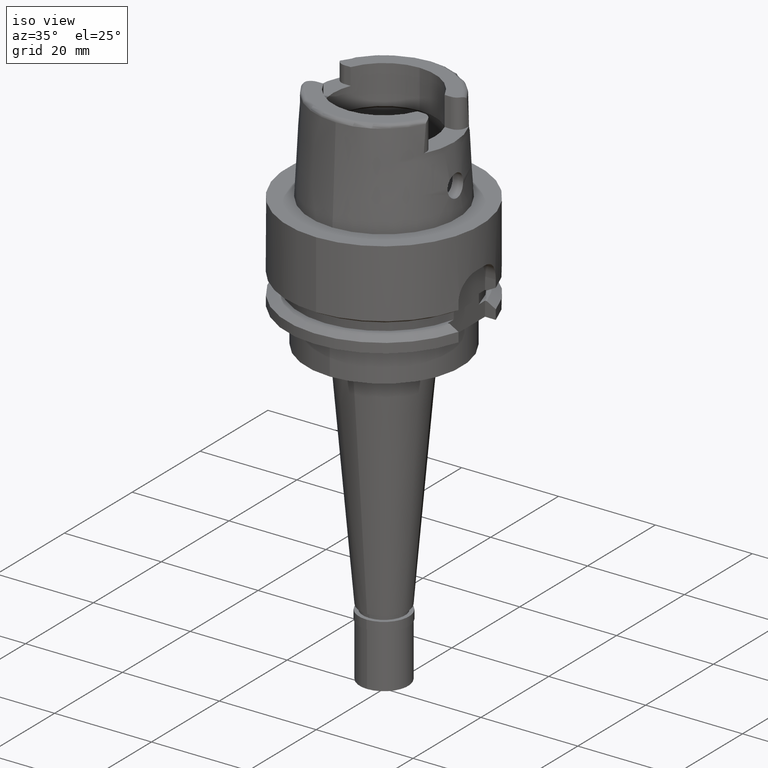
[diagram: clean part render]
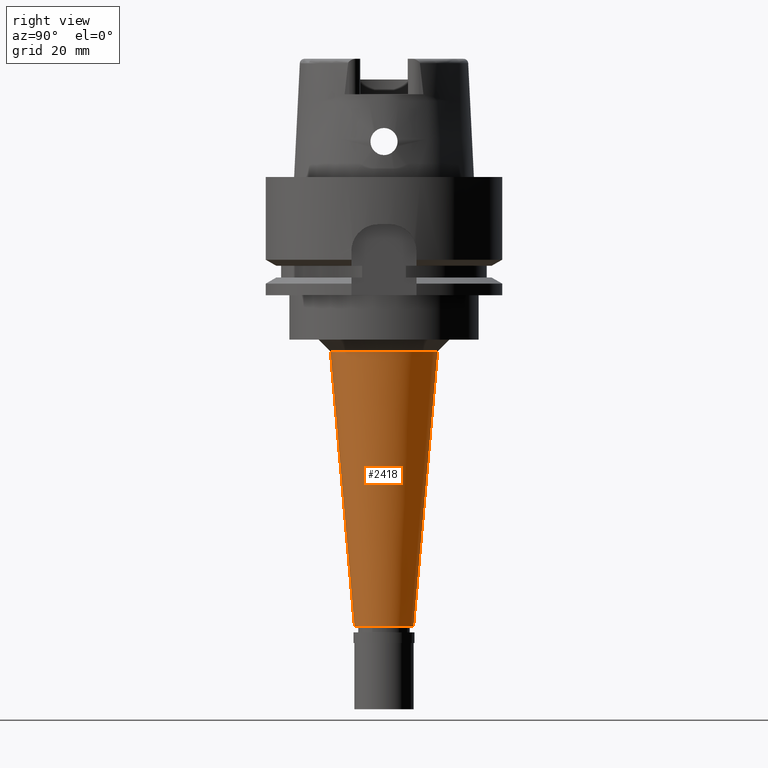
[diagram: tour spotlight — one face highlighted and labeled with its STEP entity id]
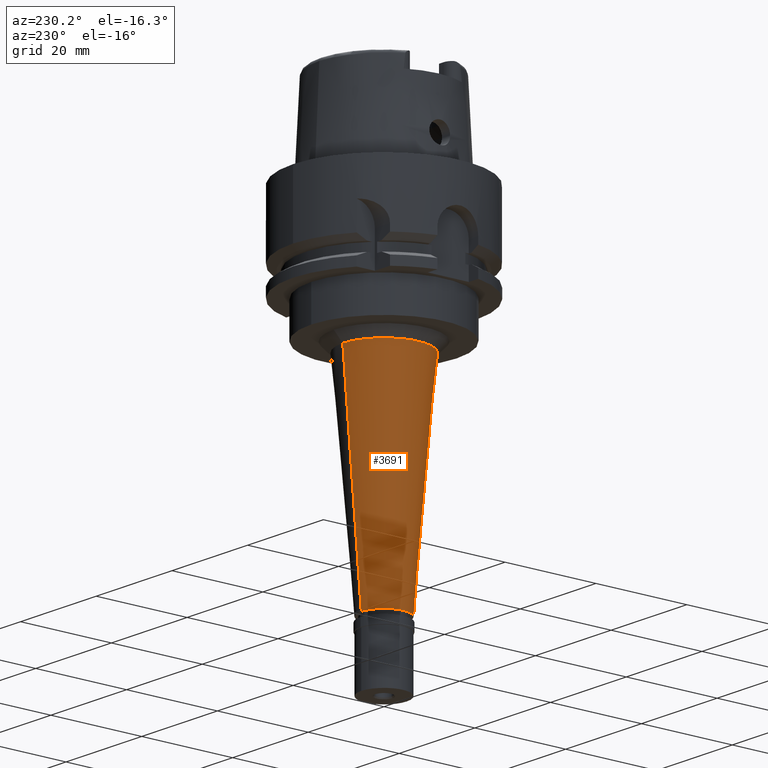
[diagram: tour spotlight — one face highlighted and labeled with its STEP entity id]
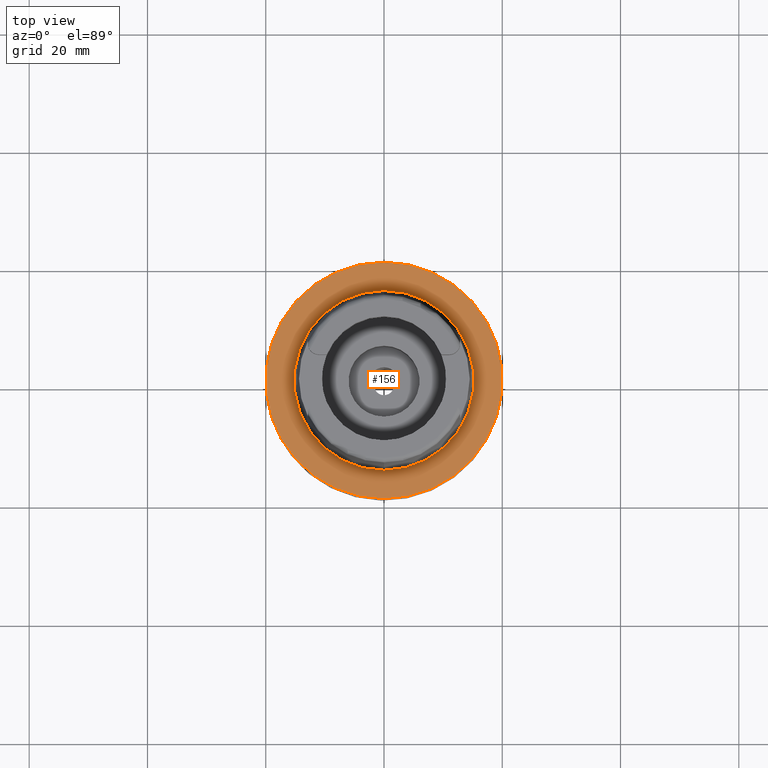
[diagram: tour spotlight — one face highlighted and labeled with its STEP entity id]
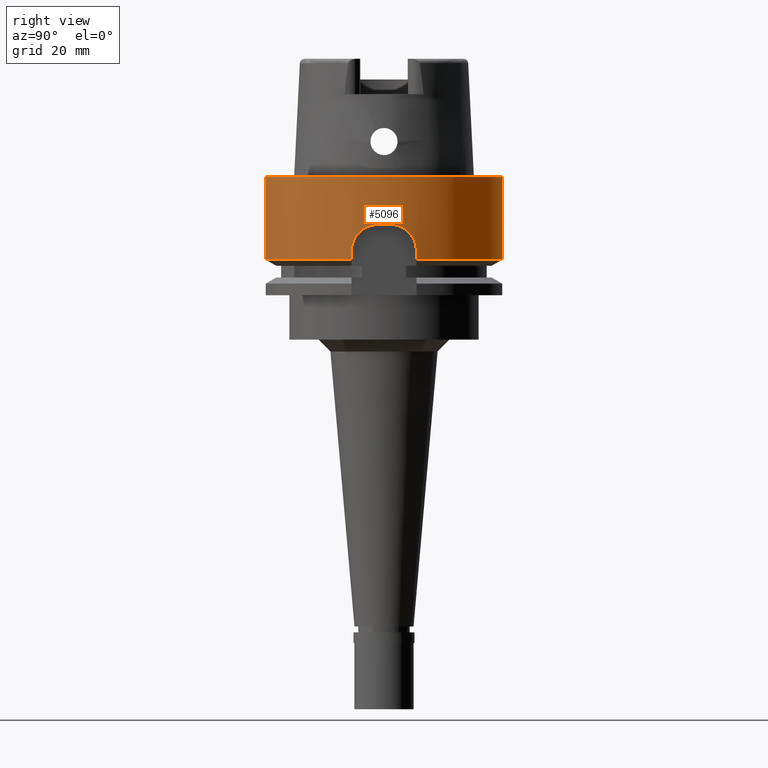
[diagram: tour spotlight — one face highlighted and labeled with its STEP entity id]
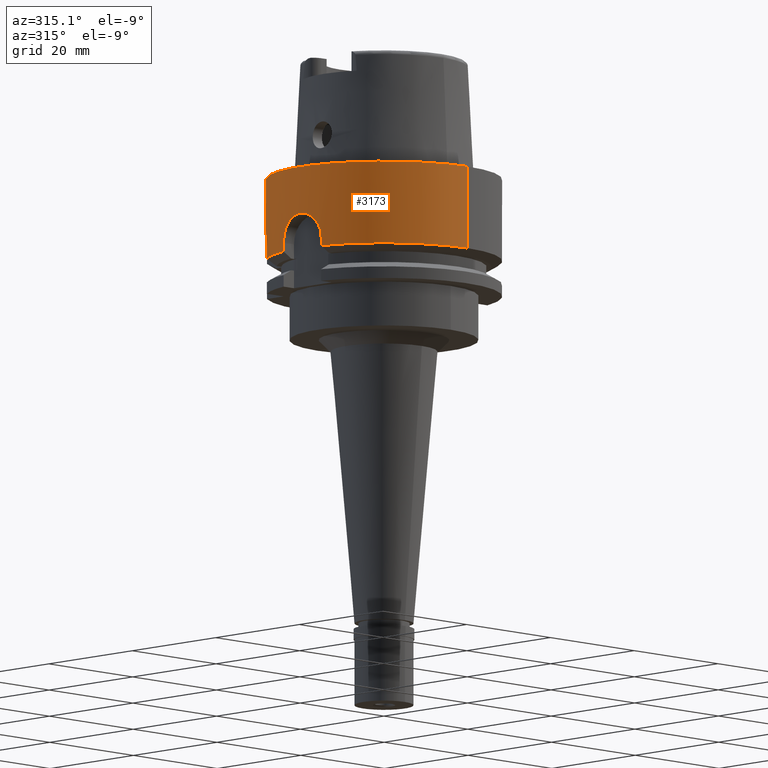
[diagram: tour spotlight — one face highlighted and labeled with its STEP entity id]
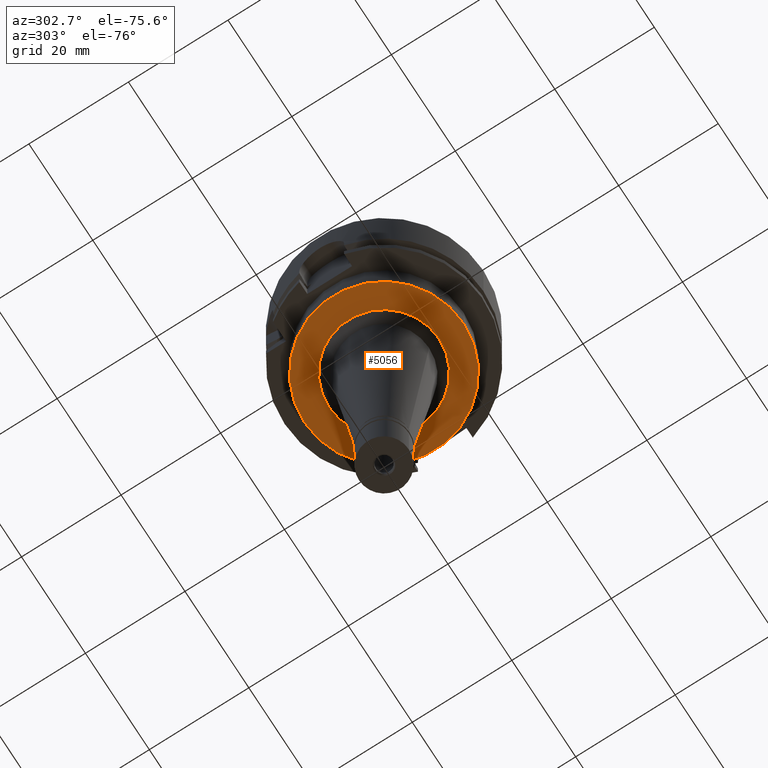
[diagram: tour spotlight — one face highlighted and labeled with its STEP entity id]
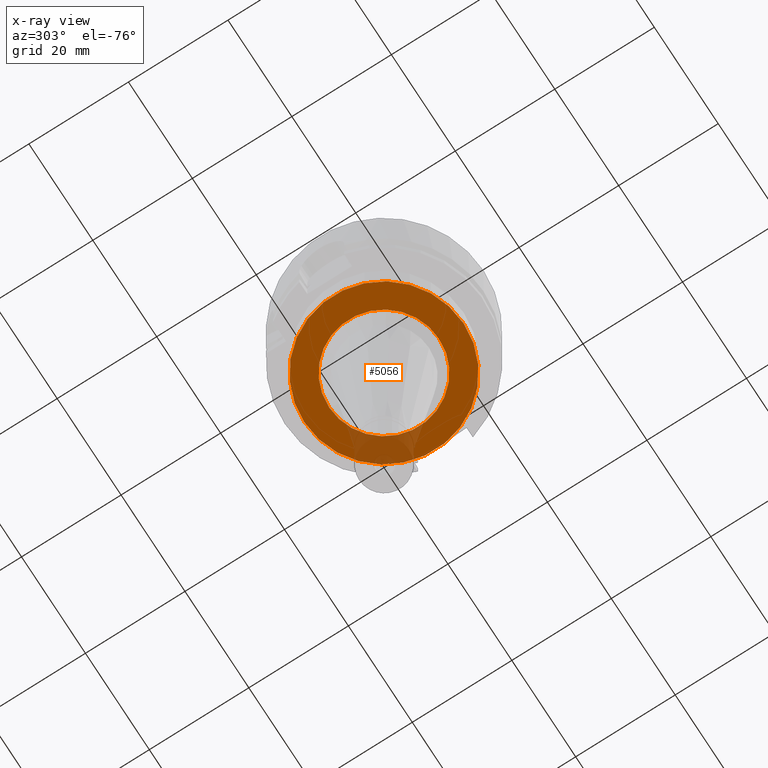
[diagram: x-ray of the same camera — body ghosted, this tour face saturated]
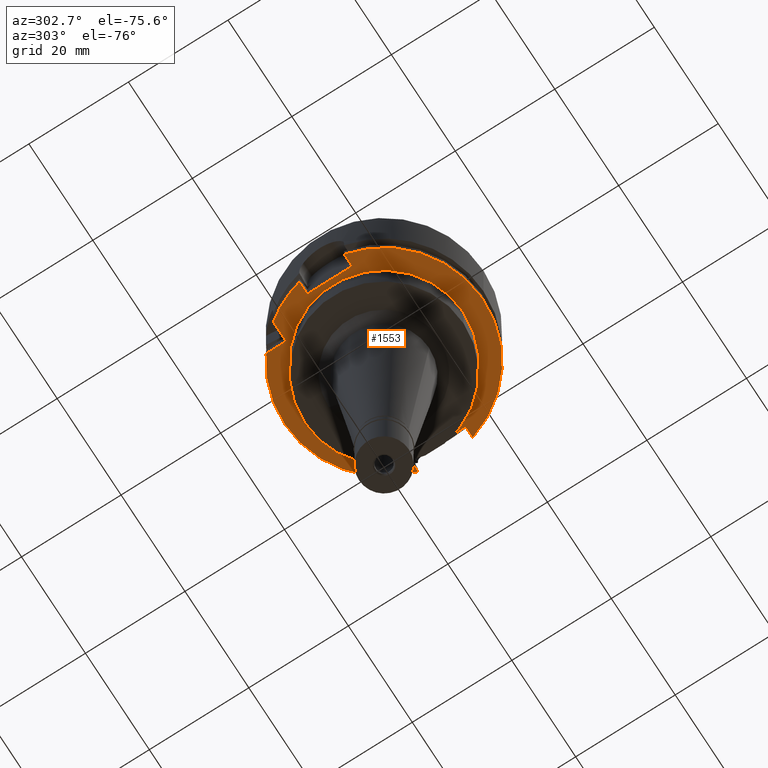
[diagram: tour spotlight — one face highlighted and labeled with its STEP entity id]
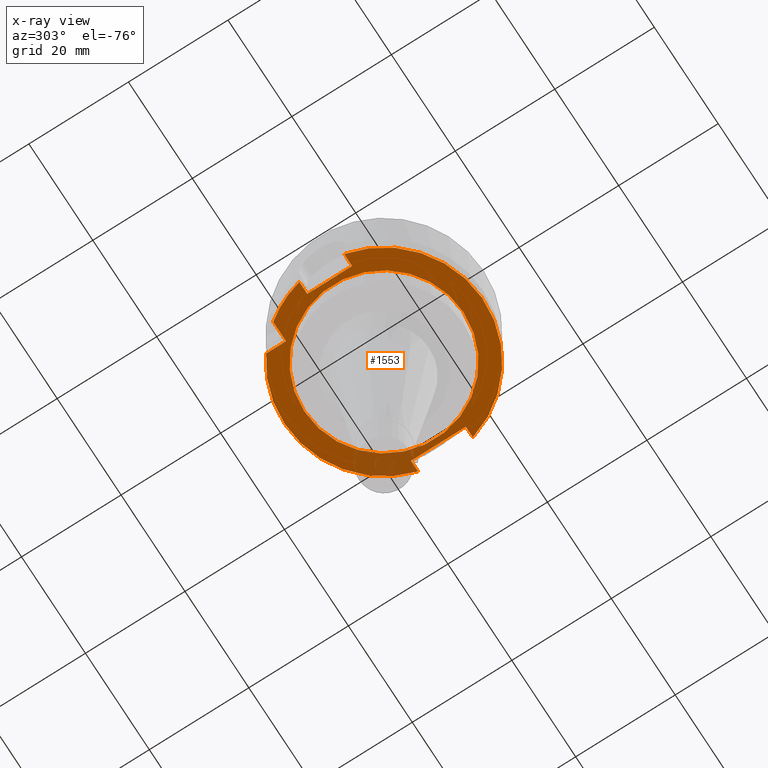
[diagram: x-ray of the same camera — body ghosted, this tour face saturated]
A machine part: a face-by-face anatomy tour. The part has 123 B-rep faces; the first image is the clean iso view, then the 7 largest visible faces are spotlighted one at a time (largest first), each with its STEP entity span.

Face 1 — right view, entity #2418. In plain terms, the highlighted conical surface has half-angle 5 deg.
Definition (entity closure, byte-faithful):
#3 = DIRECTION ( 'NONE',  ( 0.0000000000000000000, 0.0000000000000000000, 1.000000000000000000 ) ) ;
#135 = ORIENTED_EDGE ( 'NONE', *, *, #4412, .F. ) ;
#277 = AXIS2_PLACEMENT_3D ( 'NONE', #2440, #3315, #1979 ) ;
#281 = EDGE_CURVE ( 'NONE', #1023, #1091, #3112, .T. ) ;
#531 = CIRCLE ( 'NONE', #3533, 9.068222853955999696 ) ;
#532 = DIRECTION ( 'NONE',  ( 0.0000000000000000000, -0.08715574274768382590, -0.9961946980917432137 ) ) ;
#966 = VERTEX_POINT ( 'NONE', #1089 ) ;
#1023 = VERTEX_POINT ( 'NONE', #5289 ) ;
#1089 = CARTESIAN_POINT ( 'NONE',  ( 0.0000000000000000000, 9.068222853956999785, -29.50000000000000000 ) ) ;
#1091 = VERTEX_POINT ( 'NONE', #3322 ) ;
#1250 = EDGE_LOOP ( 'NONE', ( #3132, #1962, #5180, #135 ) ) ;
#1255 = DIRECTION ( 'NONE',  ( 0.0000000000000000000, 1.000000000000000000, 0.0000000000000000000 ) ) ;
#1492 = CONICAL_SURFACE ( 'NONE', #2176, 7.034111426977999848, 0.08726646259969973729 ) ;
#1601 = DIRECTION ( 'NONE',  ( 0.0000000000000000000, 0.08715574274768382590, -0.9961946980917432137 ) ) ;
#1962 = ORIENTED_EDGE ( 'NONE', *, *, #4938, .T. ) ;
#1979 = DIRECTION ( 'NONE',  ( 0.0000000000000000000, -1.000000000000000000, 0.0000000000000000000 ) ) ;
#2101 = FACE_OUTER_BOUND ( 'NONE', #1250, .T. ) ;
#2176 = AXIS2_PLACEMENT_3D ( 'NONE', #3306, #3, #1255 ) ;
#2373 = CARTESIAN_POINT ( 'NONE',  ( 0.0000000000000000000, 0.0000000000000000000, -29.50000000000000000 ) ) ;
#2418 = ADVANCED_FACE ( 'NONE', ( #2101 ), #1492, .T. ) ;
#2440 = CARTESIAN_POINT ( 'NONE',  ( 0.0000000000000000000, 0.0000000000000000000, -76.00000000000000000 ) ) ;
#2674 = EDGE_CURVE ( 'NONE', #4740, #966, #531, .T. ) ;
#3112 = CIRCLE ( 'NONE', #277, 5.000000000000000000 ) ;
#3132 = ORIENTED_EDGE ( 'NONE', *, *, #2674, .F. ) ;
#3263 = CARTESIAN_POINT ( 'NONE',  ( 0.0000000000000000000, -9.068222853956999785, -29.50000000000000000 ) ) ;
#3306 = CARTESIAN_POINT ( 'NONE',  ( 0.0000000000000000000, 0.0000000000000000000, -52.75000000000000000 ) ) ;
#3315 = DIRECTION ( 'NONE',  ( 0.0000000000000000000, 0.0000000000000000000, 1.000000000000000000 ) ) ;
#3322 = CARTESIAN_POINT ( 'NONE',  ( 0.0000000000000000000, 5.000000000000000000, -76.00000000000000000 ) ) ;
#3474 = VECTOR ( 'NONE', #532, 1000.000000000000227 ) ;
#3533 = AXIS2_PLACEMENT_3D ( 'NONE', #2373, #3625, #5264 ) ;
#3573 = VECTOR ( 'NONE', #1601, 1000.000000000000227 ) ;
#3625 = DIRECTION ( 'NONE',  ( 0.0000000000000000000, 0.0000000000000000000, 1.000000000000000000 ) ) ;
#4201 = LINE ( 'NONE', #5007, #3474 ) ;
#4412 = EDGE_CURVE ( 'NONE', #966, #1091, #4201, .T. ) ;
#4740 = VERTEX_POINT ( 'NONE', #3263 ) ;
#4938 = EDGE_CURVE ( 'NONE', #4740, #1023, #5269, .T. ) ;
#5007 = CARTESIAN_POINT ( 'NONE',  ( 0.0000000000000000000, 9.068222853956999785, -29.50000000000000000 ) ) ;
#5180 = ORIENTED_EDGE ( 'NONE', *, *, #281, .T. ) ;
#5264 = DIRECTION ( 'NONE',  ( 0.0000000000000000000, -1.000000000000000000, 0.0000000000000000000 ) ) ;
#5269 = LINE ( 'NONE', #5294, #3573 ) ;
#5289 = CARTESIAN_POINT ( 'NONE',  ( 0.0000000000000000000, -5.000000000000000000, -76.00000000000000000 ) ) ;
#5294 = CARTESIAN_POINT ( 'NONE',  ( 0.0000000000000000000, -9.068222853956999785, -29.50000000000000000 ) ) ;

Face 2 — auxiliary view, entity #3691. In plain terms, the highlighted conical surface has half-angle 5 deg.
Definition (entity closure, byte-faithful):
#457 = ORIENTED_EDGE ( 'NONE', *, *, #4412, .T. ) ;
#501 = DIRECTION ( 'NONE',  ( 0.0000000000000000000, -1.000000000000000000, 0.0000000000000000000 ) ) ;
#532 = DIRECTION ( 'NONE',  ( 0.0000000000000000000, -0.08715574274768382590, -0.9961946980917432137 ) ) ;
#966 = VERTEX_POINT ( 'NONE', #1089 ) ;
#990 = AXIS2_PLACEMENT_3D ( 'NONE', #4651, #3017, #501 ) ;
#1023 = VERTEX_POINT ( 'NONE', #5289 ) ;
#1089 = CARTESIAN_POINT ( 'NONE',  ( 0.0000000000000000000, 9.068222853956999785, -29.50000000000000000 ) ) ;
#1091 = VERTEX_POINT ( 'NONE', #3322 ) ;
#1181 = AXIS2_PLACEMENT_3D ( 'NONE', #4978, #2447, #4157 ) ;
#1601 = DIRECTION ( 'NONE',  ( 0.0000000000000000000, 0.08715574274768382590, -0.9961946980917432137 ) ) ;
#1757 = EDGE_CURVE ( 'NONE', #4740, #966, #3456, .T. ) ;
#2216 = ORIENTED_EDGE ( 'NONE', *, *, #1757, .T. ) ;
#2231 = FACE_OUTER_BOUND ( 'NONE', #4027, .T. ) ;
#2447 = DIRECTION ( 'NONE',  ( 0.0000000000000000000, 0.0000000000000000000, 1.000000000000000000 ) ) ;
#2622 = CIRCLE ( 'NONE', #1181, 5.000000000000000000 ) ;
#2663 = CARTESIAN_POINT ( 'NONE',  ( 0.0000000000000000000, 0.0000000000000000000, -52.75000000000000000 ) ) ;
#2688 = CONICAL_SURFACE ( 'NONE', #2937, 7.034111426977999848, 0.08726646259969973729 ) ;
#2839 = ORIENTED_EDGE ( 'NONE', *, *, #4315, .T. ) ;
#2937 = AXIS2_PLACEMENT_3D ( 'NONE', #2663, #4297, #3901 ) ;
#3017 = DIRECTION ( 'NONE',  ( 0.0000000000000000000, 0.0000000000000000000, -1.000000000000000000 ) ) ;
#3263 = CARTESIAN_POINT ( 'NONE',  ( 0.0000000000000000000, -9.068222853956999785, -29.50000000000000000 ) ) ;
#3322 = CARTESIAN_POINT ( 'NONE',  ( 0.0000000000000000000, 5.000000000000000000, -76.00000000000000000 ) ) ;
#3456 = CIRCLE ( 'NONE', #990, 9.068222853957999874 ) ;
#3474 = VECTOR ( 'NONE', #532, 1000.000000000000227 ) ;
#3573 = VECTOR ( 'NONE', #1601, 1000.000000000000227 ) ;
#3691 = ADVANCED_FACE ( 'NONE', ( #2231 ), #2688, .T. ) ;
#3901 = DIRECTION ( 'NONE',  ( 0.0000000000000000000, 1.000000000000000000, 0.0000000000000000000 ) ) ;
#4027 = EDGE_LOOP ( 'NONE', ( #2839, #4934, #2216, #457 ) ) ;
#4157 = DIRECTION ( 'NONE',  ( 0.0000000000000000000, 1.000000000000000000, 0.0000000000000000000 ) ) ;
#4201 = LINE ( 'NONE', #5007, #3474 ) ;
#4297 = DIRECTION ( 'NONE',  ( 0.0000000000000000000, 0.0000000000000000000, 1.000000000000000000 ) ) ;
#4315 = EDGE_CURVE ( 'NONE', #1091, #1023, #2622, .T. ) ;
#4412 = EDGE_CURVE ( 'NONE', #966, #1091, #4201, .T. ) ;
#4651 = CARTESIAN_POINT ( 'NONE',  ( 0.0000000000000000000, 0.0000000000000000000, -29.50000000000000000 ) ) ;
#4740 = VERTEX_POINT ( 'NONE', #3263 ) ;
#4934 = ORIENTED_EDGE ( 'NONE', *, *, #4938, .F. ) ;
#4938 = EDGE_CURVE ( 'NONE', #4740, #1023, #5269, .T. ) ;
#4978 = CARTESIAN_POINT ( 'NONE',  ( 0.0000000000000000000, 0.0000000000000000000, -76.00000000000000000 ) ) ;
#5007 = CARTESIAN_POINT ( 'NONE',  ( 0.0000000000000000000, 9.068222853956999785, -29.50000000000000000 ) ) ;
#5269 = LINE ( 'NONE', #5294, #3573 ) ;
#5289 = CARTESIAN_POINT ( 'NONE',  ( 0.0000000000000000000, -5.000000000000000000, -76.00000000000000000 ) ) ;
#5294 = CARTESIAN_POINT ( 'NONE',  ( 0.0000000000000000000, -9.068222853956999785, -29.50000000000000000 ) ) ;

Face 3 — top view, entity #156. In plain terms, the highlighted planar face has unit normal (0, 0, -1).
Definition (entity closure, byte-faithful):
#117 = AXIS2_PLACEMENT_3D ( 'NONE', #770, #3624, #2816 ) ;
#156 = ADVANCED_FACE ( 'NONE', ( #1445, #3510 ), #4765, .F. ) ;
#161 = EDGE_LOOP ( 'NONE', ( #3836, #3551 ) ) ;
#198 = CIRCLE ( 'NONE', #117, 20.00000000000000000 ) ;
#229 = CARTESIAN_POINT ( 'NONE',  ( 0.0000000000000000000, -15.20000663301000010, 1.136868377215999875E-13 ) ) ;
#315 = DIRECTION ( 'NONE',  ( 0.0000000000000000000, -1.000000000000000000, 0.0000000000000000000 ) ) ;
#446 = DIRECTION ( 'NONE',  ( 0.0000000000000000000, -1.000000000000000000, 0.0000000000000000000 ) ) ;
#498 = EDGE_CURVE ( 'NONE', #4296, #1887, #2342, .T. ) ;
#770 = CARTESIAN_POINT ( 'NONE',  ( 0.0000000000000000000, 1.534666136351999886E-14, -4.973799150320999175E-14 ) ) ;
#848 = CARTESIAN_POINT ( 'NONE',  ( 0.0000000000000000000, 15.20000663301000010, 0.0000000000000000000 ) ) ;
#899 = AXIS2_PLACEMENT_3D ( 'NONE', #3647, #1616, #446 ) ;
#945 = EDGE_CURVE ( 'NONE', #4046, #1105, #198, .T. ) ;
#1105 = VERTEX_POINT ( 'NONE', #2477 ) ;
#1108 = DIRECTION ( 'NONE',  ( 0.0000000000000000000, 0.0000000000000000000, -1.000000000000000000 ) ) ;
#1445 = FACE_OUTER_BOUND ( 'NONE', #4876, .T. ) ;
#1483 = CIRCLE ( 'NONE', #899, 20.00000000000000000 ) ;
#1616 = DIRECTION ( 'NONE',  ( 0.0000000000000000000, 0.0000000000000000000, -1.000000000000000000 ) ) ;
#1634 = EDGE_CURVE ( 'NONE', #1105, #4046, #1483, .T. ) ;
#1654 = AXIS2_PLACEMENT_3D ( 'NONE', #1676, #3328, #2049 ) ;
#1676 = CARTESIAN_POINT ( 'NONE',  ( 0.0000000000000000000, 1.342457523729000028E-14, 0.0000000000000000000 ) ) ;
#1887 = VERTEX_POINT ( 'NONE', #229 ) ;
#1893 = EDGE_CURVE ( 'NONE', #1887, #4296, #4145, .T. ) ;
#2049 = DIRECTION ( 'NONE',  ( 0.0000000000000000000, 1.000000000000000000, 0.0000000000000000000 ) ) ;
#2067 = ORIENTED_EDGE ( 'NONE', *, *, #1634, .F. ) ;
#2331 = DIRECTION ( 'NONE',  ( 0.0000000000000000000, -1.000000000000000000, 0.0000000000000000000 ) ) ;
#2342 = CIRCLE ( 'NONE', #1654, 15.20000663301000010 ) ;
#2477 = CARTESIAN_POINT ( 'NONE',  ( 0.0000000000000000000, -20.00000000000000000, -4.973799150320999175E-14 ) ) ;
#2586 = ORIENTED_EDGE ( 'NONE', *, *, #945, .F. ) ;
#2816 = DIRECTION ( 'NONE',  ( 0.0000000000000000000, 1.000000000000000000, 0.0000000000000000000 ) ) ;
#2981 = CARTESIAN_POINT ( 'NONE',  ( 0.0000000000000000000, 20.00000000000000000, -2.842170943039999687E-14 ) ) ;
#3328 = DIRECTION ( 'NONE',  ( 0.0000000000000000000, 0.0000000000000000000, 1.000000000000000000 ) ) ;
#3510 = FACE_BOUND ( 'NONE', #161, .T. ) ;
#3551 = ORIENTED_EDGE ( 'NONE', *, *, #1893, .F. ) ;
#3624 = DIRECTION ( 'NONE',  ( 0.0000000000000000000, 0.0000000000000000000, -1.000000000000000000 ) ) ;
#3640 = AXIS2_PLACEMENT_3D ( 'NONE', #4304, #4703, #315 ) ;
#3647 = CARTESIAN_POINT ( 'NONE',  ( 0.0000000000000000000, 1.534666136351999886E-14, -4.973799150320999175E-14 ) ) ;
#3798 = AXIS2_PLACEMENT_3D ( 'NONE', #3939, #1108, #2331 ) ;
#3836 = ORIENTED_EDGE ( 'NONE', *, *, #498, .F. ) ;
#3939 = CARTESIAN_POINT ( 'NONE',  ( 0.0000000000000000000, 1.224646799146999965E-14, 0.0000000000000000000 ) ) ;
#4046 = VERTEX_POINT ( 'NONE', #2981 ) ;
#4145 = CIRCLE ( 'NONE', #3640, 15.20000663301000010 ) ;
#4296 = VERTEX_POINT ( 'NONE', #848 ) ;
#4304 = CARTESIAN_POINT ( 'NONE',  ( 0.0000000000000000000, 1.342457523729000028E-14, 0.0000000000000000000 ) ) ;
#4703 = DIRECTION ( 'NONE',  ( 0.0000000000000000000, 0.0000000000000000000, 1.000000000000000000 ) ) ;
#4765 = PLANE ( 'NONE',  #3798 ) ;
#4876 = EDGE_LOOP ( 'NONE', ( #2586, #2067 ) ) ;

Face 4 — right view, entity #5096. In plain terms, the highlighted cylindrical surface (partial cylindrical patch) has radius 20 mm, axis along (0, 0, -1).
Definition (entity closure, byte-faithful):
#48 = DIRECTION ( 'NONE',  ( 0.0000000000000000000, 0.0000000000000000000, 1.000000000000000000 ) ) ;
#62 = DIRECTION ( 'NONE',  ( 0.0000000000000000000, -1.000000000000000000, 0.0000000000000000000 ) ) ;
#70 = CARTESIAN_POINT ( 'NONE',  ( 19.70286275662075326, -3.434780831055192163, -8.715480651304270410 ) ) ;
#72 = CARTESIAN_POINT ( 'NONE',  ( 0.0000000000000000000, 1.534666136351999886E-14, -8.000000000000000000 ) ) ;
#108 = AXIS2_PLACEMENT_3D ( 'NONE', #1301, #857, #3736 ) ;
#117 = AXIS2_PLACEMENT_3D ( 'NONE', #770, #3624, #2816 ) ;
#145 = CARTESIAN_POINT ( 'NONE',  ( 19.37445306152446634, 4.968718896179900923, -10.35856978558746810 ) ) ;
#169 = CARTESIAN_POINT ( 'NONE',  ( 19.34380695557921115, 5.081862356183860285, -10.59253311257741359 ) ) ;
#195 = CARTESIAN_POINT ( 'NONE',  ( 19.50142593039273109, 4.439542253083269330, -9.597059118783027643 ) ) ;
#198 = CIRCLE ( 'NONE', #117, 20.00000000000000000 ) ;
#226 = CARTESIAN_POINT ( 'NONE',  ( 19.97498435543999662, 1.000000000000000000, -8.000000000000000000 ) ) ;
#273 = CARTESIAN_POINT ( 'NONE',  ( 19.59755329169270510, -3.991492605769090485, -9.137735594603736189 ) ) ;
#275 = CARTESIAN_POINT ( 'NONE',  ( 19.22888455218999937, 5.499999898047000180, -13.97927491220000107 ) ) ;
#308 = CARTESIAN_POINT ( 'NONE',  ( 19.22888452303000051, -5.500000000000000000, -12.50000000000000000 ) ) ;
#312 = VECTOR ( 'NONE', #3546, 1000.000000000000000 ) ;
#356 = LINE ( 'NONE', #1988, #312 ) ;
#361 = CARTESIAN_POINT ( 'NONE',  ( 19.69218632689465309, -3.495406580192036650, -8.755277578796844651 ) ) ;
#362 = CARTESIAN_POINT ( 'NONE',  ( 0.0000000000000000000, -20.00000000000000000, -2.842170943039999687E-14 ) ) ;
#390 = CARTESIAN_POINT ( 'NONE',  ( 19.33346370639244327, -5.120735699999443113, -10.69140906421854531 ) ) ;
#392 = LINE ( 'NONE', #275, #3641 ) ;
#468 = EDGE_CURVE ( 'NONE', #1105, #2013, #2402, .T. ) ;
#560 = EDGE_CURVE ( 'NONE', #2013, #2995, #5071, .T. ) ;
#606 = CARTESIAN_POINT ( 'NONE',  ( 19.82015892487024544, -2.675583637700282846, -8.323576253932365887 ) ) ;
#607 = CARTESIAN_POINT ( 'NONE',  ( 19.43260815123626628, 4.734422932988243460, -9.984905843194917807 ) ) ;
#609 = EDGE_CURVE ( 'NONE', #4908, #2995, #2071, .T. ) ;
#638 = CARTESIAN_POINT ( 'NONE',  ( 19.29601910180648616, 5.260598097711366883, -11.04834435504875501 ) ) ;
#666 = CARTESIAN_POINT ( 'NONE',  ( 19.94128767625243626, -1.553696544845087679, -8.024613320690722418 ) ) ;
#676 = VERTEX_POINT ( 'NONE', #3897 ) ;
#718 = CARTESIAN_POINT ( 'NONE',  ( 19.56731345559589741, -4.137688151790877455, -9.274255796982194155 ) ) ;
#723 = AXIS2_PLACEMENT_3D ( 'NONE', #72, #48, #5306 ) ;
#748 = CARTESIAN_POINT ( 'NONE',  ( 19.56276028350954732, -4.159176365738356473, -9.295357038136701888 ) ) ;
#770 = CARTESIAN_POINT ( 'NONE',  ( 0.0000000000000000000, 1.534666136351999886E-14, -4.973799150320999175E-14 ) ) ;
#774 = CARTESIAN_POINT ( 'NONE',  ( 19.69007030110466161, -3.507325168056602216, -8.763220307113742891 ) ) ;
#857 = DIRECTION ( 'NONE',  ( 0.0000000000000000000, 0.0000000000000000000, 1.000000000000000000 ) ) ;
#878 = CYLINDRICAL_SURFACE ( 'NONE', #4758, 20.00000000000000000 ) ;
#945 = EDGE_CURVE ( 'NONE', #4046, #1105, #198, .T. ) ;
#958 = CARTESIAN_POINT ( 'NONE',  ( 19.30823085762336788, 5.215214264579218550, -10.92377104179822211 ) ) ;
#991 = CARTESIAN_POINT ( 'NONE',  ( 19.97498435543999662, -1.000000000000000000, -8.000000000000000000 ) ) ;
#992 = CARTESIAN_POINT ( 'NONE',  ( 19.53027908027488735, 4.309626506875561702, -9.450435772416618363 ) ) ;
#1004 = DIRECTION ( 'NONE',  ( 0.0000000000000000000, 0.0000000000000000000, 1.000000000000000000 ) ) ;
#1017 = CARTESIAN_POINT ( 'NONE',  ( 19.69486462528553261, -3.480290084626226133, -8.745241877274860798 ) ) ;
#1019 = CARTESIAN_POINT ( 'NONE',  ( 19.45402416960585157, 4.645537953123496600, -9.856678750723689930 ) ) ;
#1041 = CARTESIAN_POINT ( 'NONE',  ( 19.64322700995230520, 3.760156515080752548, -8.942840572101511398 ) ) ;
#1067 = CARTESIAN_POINT ( 'NONE',  ( 19.81625301537154016, -2.704420886937500601, -8.335265361553133800 ) ) ;
#1070 = CARTESIAN_POINT ( 'NONE',  ( 19.22888452303000051, -5.499999999998999911, -13.97927405783999966 ) ) ;
#1105 = VERTEX_POINT ( 'NONE', #2477 ) ;
#1142 = CIRCLE ( 'NONE', #2589, 20.00000000000000355 ) ;
#1143 = CARTESIAN_POINT ( 'NONE',  ( 19.34832780428711274, -5.064939329120636380, -10.56870436405334246 ) ) ;
#1223 = CARTESIAN_POINT ( 'NONE',  ( 19.33828921808074242, -5.102649160097793235, -10.65089791659209517 ) ) ;
#1244 = EDGE_CURVE ( 'NONE', #2019, #3241, #1142, .T. ) ;
#1277 = FACE_OUTER_BOUND ( 'NONE', #2225, .T. ) ;
#1278 = DIRECTION ( 'NONE',  ( -9.333579435436393947E-08, -3.263148693085135881E-07, -0.9999999999999423794 ) ) ;
#1301 = CARTESIAN_POINT ( 'NONE',  ( 0.0000000000000000000, 1.047199923064999921E-14, -13.97927405783999966 ) ) ;
#1406 = CARTESIAN_POINT ( 'NONE',  ( 19.72200033328198998, -3.323108481500928857, -8.645817699092619435 ) ) ;
#1420 = CARTESIAN_POINT ( 'NONE',  ( 0.0000000000000000000, 1.047199923064999921E-14, -13.97927405783999966 ) ) ;
#1435 = CARTESIAN_POINT ( 'NONE',  ( 19.79891483244723460, -2.831338609755972957, -8.387472549094503904 ) ) ;
#1436 = CARTESIAN_POINT ( 'NONE',  ( 19.66574843538842998, 3.640817669629786923, -8.853413500725553220 ) ) ;
#1459 = CARTESIAN_POINT ( 'NONE',  ( 19.73895532435239275, -3.221284057164071069, -8.585652795268936543 ) ) ;
#1515 = CARTESIAN_POINT ( 'NONE',  ( 19.32381787218626101, -5.156912517073866553, -10.77660492449555107 ) ) ;
#1542 = CARTESIAN_POINT ( 'NONE',  ( 19.45499076636320268, -4.644027424729103792, -9.843214420902857142 ) ) ;
#1569 = EDGE_CURVE ( 'NONE', #676, #3099, #2849, .T. ) ;
#1572 = CARTESIAN_POINT ( 'NONE',  ( 19.32453330765248367, -5.154225458030441409, -10.77013783649386447 ) ) ;
#1577 = VECTOR ( 'NONE', #1278, 1000.000000000000114 ) ;
#1592 = ORIENTED_EDGE ( 'NONE', *, *, #5267, .F. ) ;
#1736 = VECTOR ( 'NONE', #3637, 1000.000000000000000 ) ;
#1749 = CARTESIAN_POINT ( 'NONE',  ( 0.0000000000000000000, 1.534666136351999886E-14, 25.31500000000000128 ) ) ;
#1808 = CARTESIAN_POINT ( 'NONE',  ( 19.80702582156760982, 2.771501254341000919, -8.363168820821488936 ) ) ;
#1839 = CARTESIAN_POINT ( 'NONE',  ( 19.31465255680291904, 5.191230033022964818, -10.86163901159076772 ) ) ;
#1866 = CARTESIAN_POINT ( 'NONE',  ( 19.55047447292162843, 4.216571673568295431, -9.352970484362158388 ) ) ;
#1916 = CARTESIAN_POINT ( 'NONE',  ( 19.63064394766535514, -3.824976937217297479, -8.995569032999554793 ) ) ;
#1918 = DIRECTION ( 'NONE',  ( -1.971263328322989558E-08, 6.892056602030961288E-08, 0.9999999999999973355 ) ) ;
#1946 = CARTESIAN_POINT ( 'NONE',  ( 19.50243034716852719, -4.441498029901092437, -9.577354834613373669 ) ) ;
#1969 = ORIENTED_EDGE ( 'NONE', *, *, #468, .T. ) ;
#1988 = CARTESIAN_POINT ( 'NONE',  ( 0.0000000000000000000, 20.00000000000000000, -2.842170943039999687E-14 ) ) ;
#2013 = VERTEX_POINT ( 'NONE', #2359 ) ;
#2019 = VERTEX_POINT ( 'NONE', #4413 ) ;
#2021 = CARTESIAN_POINT ( 'NONE',  ( 19.32359924222966185, -5.157733724682755039, -10.77858382672681081 ) ) ;
#2071 = LINE ( 'NONE', #3305, #1577 ) ;
#2105 = EDGE_CURVE ( 'NONE', #5224, #3099, #3030, .T. ) ;
#2185 = CARTESIAN_POINT ( 'NONE',  ( 19.28663469832159549, 5.295105913703959999, -11.15552064465399340 ) ) ;
#2225 = EDGE_LOOP ( 'NONE', ( #4704, #5004, #4441, #5233, #1592, #4495, #1969, #4325, #4896, #3595 ) ) ;
#2234 = CARTESIAN_POINT ( 'NONE',  ( 19.77784088565055853, 2.975054965791005035, -8.455373366385931178 ) ) ;
#2243 = B_SPLINE_CURVE_WITH_KNOTS ( 'NONE', 3,
 ( #991, #4250, #666, #2640, #3498, #3902, #4298, #2297, #5105, #606, #3436, #1067, #1435, #3467, #3070, #1459, #1406, #3747, #70, #3043, #1017, #3604, #3555, #3174, #361, #774, #3151, #2820, #1916, #3581, #273, #4408, #2378, #718, #748, #3983, #5209, #3952, #1946, #1542, #4802, #3234, #2799, #1143, #1223, #390, #5182, #4862, #1572, #1515, #2021, #4434, #3203, #308 ),
 .UNSPECIFIED., .F., .F.,
 ( 4, 2, 2, 1, 1, 1, 2, 2, 2, 2, 1, 1, 1, 1, 1, 2, 2, 2, 2, 2, 1, 1, 1, 2, 2, 2, 2, 2, 1, 1, 1, 2, 2, 4 ),
 ( 0.0000000000000000000, 0.1249999999996938838, 0.1874999999995409228, 0.2187499999994643729, 0.2343749999994262923, 0.2421874999994072797, 0.2460937499993977040, 0.2499999999993881006, 0.3124999999992308375, 0.3437499999991521782, 0.3593749999991130428, 0.3671874999990935029, 0.3710937499990838995, 0.3730468749990791255, 0.3740234374990764610, 0.3745117187490752952, 0.3749999999990741850, 0.4374999999991517896, 0.4687499999991906474, 0.4843749999992100763, 0.4921874999992198463, 0.4960937499992246758, 0.4980468749992272848, 0.4990234374992285060, 0.4999999999992297273, 0.6249999999994171329, 0.6874999999995110578, 0.7187499999995584643, 0.7343749999995820010, 0.7421874999995942135, 0.7460937499996002087, 0.7480468749996033173, 0.7499999999996063149, 1.000000000000000000 ),
 .UNSPECIFIED. ) ;
#2268 = CARTESIAN_POINT ( 'NONE',  ( 19.76260105710921877, 3.074924970397655777, -8.506226763252636047 ) ) ;
#2297 = CARTESIAN_POINT ( 'NONE',  ( 19.83222837323686605, -2.584740915312000453, -8.287963799894336958 ) ) ;
#2299 = CARTESIAN_POINT ( 'NONE',  ( 19.80244722007547153, 2.804145672546970225, -8.377322053014763625 ) ) ;
#2354 = CARTESIAN_POINT ( 'NONE',  ( 0.0000000000000000000, 20.00000000000000000, -13.97927405783999966 ) ) ;
#2358 = EDGE_CURVE ( 'NONE', #2019, #5224, #392, .T. ) ;
#2359 = CARTESIAN_POINT ( 'NONE',  ( 0.0000000000000000000, -20.00000000000000000, -13.97927405783999966 ) ) ;
#2378 = CARTESIAN_POINT ( 'NONE',  ( 19.57621227052652202, -4.095335981727867392, -9.233376359362281960 ) ) ;
#2402 = LINE ( 'NONE', #362, #1736 ) ;
#2477 = CARTESIAN_POINT ( 'NONE',  ( 0.0000000000000000000, -20.00000000000000000, -4.973799150320999175E-14 ) ) ;
#2584 = CARTESIAN_POINT ( 'NONE',  ( 19.54198105162760513, 4.255882633077031407, -9.393536465144112668 ) ) ;
#2589 = AXIS2_PLACEMENT_3D ( 'NONE', #1420, #1004, #5035 ) ;
#2640 = CARTESIAN_POINT ( 'NONE',  ( 19.90134986795703043, -1.984987916340887004, -8.106685163462502786 ) ) ;
#2641 = CARTESIAN_POINT ( 'NONE',  ( 19.79266068958626690, 2.872814982025818864, -8.408059249521329548 ) ) ;
#2666 = CARTESIAN_POINT ( 'NONE',  ( 19.48919467985870924, 4.493392015102250170, -9.662221682820394619 ) ) ;
#2696 = CARTESIAN_POINT ( 'NONE',  ( 19.89318047508611897, 2.146238498647575987, -8.101944124052639751 ) ) ;
#2799 = CARTESIAN_POINT ( 'NONE',  ( 19.35553694553106752, -5.037750810787033906, -10.51234513079900346 ) ) ;
#2816 = DIRECTION ( 'NONE',  ( 0.0000000000000000000, 1.000000000000000000, 0.0000000000000000000 ) ) ;
#2820 = CARTESIAN_POINT ( 'NONE',  ( 19.64434316033177552, -3.753364497204250583, -8.939880111604175283 ) ) ;
#2849 = CIRCLE ( 'NONE', #723, 20.00000000000000355 ) ;
#2981 = CARTESIAN_POINT ( 'NONE',  ( 0.0000000000000000000, 20.00000000000000000, -2.842170943039999687E-14 ) ) ;
#2995 = VERTEX_POINT ( 'NONE', #1070 ) ;
#3010 = CARTESIAN_POINT ( 'NONE',  ( 19.31936919709609413, 5.173565336899839551, -10.81733093384521283 ) ) ;
#3030 = B_SPLINE_CURVE_WITH_KNOTS ( 'NONE', 3,
 ( #5239, #3209, #3870, #4299, #3469, #2185, #638, #958, #1839, #5106, #3010, #3904, #4643, #169, #145, #607, #1019, #2666, #195, #3525, #992, #2584, #5044, #1866, #4277, #4220, #3845, #1041, #1436, #3819, #3500, #2268, #2234, #2641, #2299, #1808, #2696, #3437, #226 ),
 .UNSPECIFIED., .F., .F.,
 ( 4, 2, 2, 1, 1, 1, 1, 2, 2, 2, 2, 2, 1, 1, 2, 2, 2, 2, 2, 1, 2, 2, 4 ),
 ( 0.0000000000000000000, 0.1250000000000140166, 0.1875000000000213718, 0.2187500000000249800, 0.2343750000000265621, 0.2421875000000272837, 0.2460937500000277833, 0.2480468750000279776, 0.2500000000000281442, 0.3750000000000233702, 0.4375000000000211497, 0.4687500000000202616, 0.4843750000000195399, 0.4921875000000194289, 0.4960937500000194289, 0.5000000000000194289, 0.5625000000000174305, 0.6250000000000153211, 0.6875000000000132117, 0.7187500000000122125, 0.7343750000000116573, 0.7500000000000109912, 1.000000000000000000 ),
 .UNSPECIFIED. ) ;
#3043 = CARTESIAN_POINT ( 'NONE',  ( 19.69754499802053260, -3.465100448368971353, -8.735233290151604990 ) ) ;
#3070 = CARTESIAN_POINT ( 'NONE',  ( 19.74973462132021140, -3.154397350034235270, -8.548536765165938078 ) ) ;
#3096 = CARTESIAN_POINT ( 'NONE',  ( 19.97498435543999662, 1.000000000000000000, -8.000000000000000000 ) ) ;
#3099 = VERTEX_POINT ( 'NONE', #3096 ) ;
#3151 = CARTESIAN_POINT ( 'NONE',  ( 19.67785115747795999, -3.575650279068966153, -8.807046664687272042 ) ) ;
#3174 = CARTESIAN_POINT ( 'NONE',  ( 19.69255577653825640, -3.493325089397758099, -8.753891125188427935 ) ) ;
#3203 = CARTESIAN_POINT ( 'NONE',  ( 19.22888452303000051, -5.500000000000000888, -11.94434606112286978 ) ) ;
#3209 = CARTESIAN_POINT ( 'NONE',  ( 19.22888452303000051, 5.500000000000000000, -12.22465747469364672 ) ) ;
#3234 = CARTESIAN_POINT ( 'NONE',  ( 19.37871462058206262, -4.949342529063267548, -10.33909566514126332 ) ) ;
#3241 = VERTEX_POINT ( 'NONE', #2354 ) ;
#3305 = CARTESIAN_POINT ( 'NONE',  ( 19.22888452303000051, -5.500000000000000000, -12.50000000000000000 ) ) ;
#3380 = DIRECTION ( 'NONE',  ( 0.0000000000000000000, 0.0000000000000000000, -1.000000000000000000 ) ) ;
#3436 = CARTESIAN_POINT ( 'NONE',  ( 19.81770557128493593, -2.693738785043562345, -8.330906002296700308 ) ) ;
#3437 = CARTESIAN_POINT ( 'NONE',  ( 19.94747734611184953, 1.549452080895394435, -8.000000000000000000 ) ) ;
#3467 = CARTESIAN_POINT ( 'NONE',  ( 19.78050042098632133, -2.957517143881143173, -8.445362508962046988 ) ) ;
#3469 = CARTESIAN_POINT ( 'NONE',  ( 19.26930964573412197, 5.358382645663338550, -11.37007128475910100 ) ) ;
#3498 = CARTESIAN_POINT ( 'NONE',  ( 19.88640778753581273, -2.130037156457778025, -8.141558214560372875 ) ) ;
#3500 = CARTESIAN_POINT ( 'NONE',  ( 19.73156136721900111, 3.271312546341104799, -8.612418166238757777 ) ) ;
#3525 = CARTESIAN_POINT ( 'NONE',  ( 19.52053442686839446, 4.353765221782037287, -9.499310411786693109 ) ) ;
#3546 = DIRECTION ( 'NONE',  ( 0.0000000000000000000, -4.574547001069000145E-14, -1.000000000000000000 ) ) ;
#3555 = CARTESIAN_POINT ( 'NONE',  ( 19.69294124567121074, -3.491151711781963041, -8.752445483752351763 ) ) ;
#3581 = CARTESIAN_POINT ( 'NONE',  ( 19.60630030823918091, -3.947932665863945978, -9.099621231082835493 ) ) ;
#3595 = ORIENTED_EDGE ( 'NONE', *, *, #4871, .F. ) ;
#3604 = CARTESIAN_POINT ( 'NONE',  ( 19.69351906555931819, -3.487892151941245800, -8.750279404319933008 ) ) ;
#3624 = DIRECTION ( 'NONE',  ( 0.0000000000000000000, 0.0000000000000000000, -1.000000000000000000 ) ) ;
#3637 = DIRECTION ( 'NONE',  ( 0.0000000000000000000, 4.549132851063000272E-14, -1.000000000000000000 ) ) ;
#3641 = VECTOR ( 'NONE', #1918, 1000.000000000000227 ) ;
#3736 = DIRECTION ( 'NONE',  ( 0.0000000000000000000, -1.000000000000000000, 0.0000000000000000000 ) ) ;
#3747 = CARTESIAN_POINT ( 'NONE',  ( 19.71332632634211635, -3.374393332543563773, -8.677022816193131760 ) ) ;
#3819 = CARTESIAN_POINT ( 'NONE',  ( 19.71012153021548841, 3.397762175239445348, -8.689193312183027373 ) ) ;
#3845 = CARTESIAN_POINT ( 'NONE',  ( 19.59855040313290431, 3.987633760326811050, -9.131633675298168384 ) ) ;
#3870 = CARTESIAN_POINT ( 'NONE',  ( 19.23658454640221294, 5.474660854085302120, -11.94154979021848106 ) ) ;
#3897 = CARTESIAN_POINT ( 'NONE',  ( 19.97498435543999662, -1.000000000000000000, -8.000000000000000000 ) ) ;
#3902 = CARTESIAN_POINT ( 'NONE',  ( 19.86155045041985190, -2.348188506667324926, -8.206034764521206171 ) ) ;
#3904 = CARTESIAN_POINT ( 'NONE',  ( 19.32032418046354749, 5.169984398368204559, -10.80847615301117948 ) ) ;
#3952 = CARTESIAN_POINT ( 'NONE',  ( 19.55857315053917844, -4.178829359049087699, -9.314870145128914203 ) ) ;
#3983 = CARTESIAN_POINT ( 'NONE',  ( 19.56078668876802595, -4.168450488725246039, -9.304543760795141338 ) ) ;
#4035 = CARTESIAN_POINT ( 'NONE',  ( 19.22888452303000051, -5.500000000000000000, -12.50000000000000000 ) ) ;
#4046 = VERTEX_POINT ( 'NONE', #2981 ) ;
#4220 = CARTESIAN_POINT ( 'NONE',  ( 19.57622255506661801, 4.096717591862338637, -9.231638431951099122 ) ) ;
#4250 = CARTESIAN_POINT ( 'NONE',  ( 19.96139497115839134, -1.271447738381959569, -8.000000000000000000 ) ) ;
#4277 = CARTESIAN_POINT ( 'NONE',  ( 19.55251032529857014, 4.207111571716469101, -9.343337093207152222 ) ) ;
#4298 = CARTESIAN_POINT ( 'NONE',  ( 19.84851072774084102, -2.457405216498078637, -8.241312961680177906 ) ) ;
#4299 = CARTESIAN_POINT ( 'NONE',  ( 19.25968461651885733, 5.392910415947905989, -11.51336319933396801 ) ) ;
#4325 = ORIENTED_EDGE ( 'NONE', *, *, #560, .T. ) ;
#4371 = CARTESIAN_POINT ( 'NONE',  ( 19.22888452303000051, 5.500000000000000000, -12.50000000000000000 ) ) ;
#4408 = CARTESIAN_POINT ( 'NONE',  ( 19.58348406176634526, -4.060166917128912090, -9.200554451903895981 ) ) ;
#4413 = CARTESIAN_POINT ( 'NONE',  ( 19.22888455218999937, 5.499999898047000180, -13.97927491220000107 ) ) ;
#4434 = CARTESIAN_POINT ( 'NONE',  ( 19.26029251281642374, -5.395656231043053808, -11.35498875610898573 ) ) ;
#4441 = ORIENTED_EDGE ( 'NONE', *, *, #2358, .F. ) ;
#4495 = ORIENTED_EDGE ( 'NONE', *, *, #945, .T. ) ;
#4643 = CARTESIAN_POINT ( 'NONE',  ( 19.32093289487027121, 5.167700803223270967, -10.80286057460748950 ) ) ;
#4704 = ORIENTED_EDGE ( 'NONE', *, *, #1569, .T. ) ;
#4758 = AXIS2_PLACEMENT_3D ( 'NONE', #1749, #3380, #62 ) ;
#4802 = CARTESIAN_POINT ( 'NONE',  ( 19.39623340570821597, -4.881279890960520618, -10.21799917191194496 ) ) ;
#4862 = CARTESIAN_POINT ( 'NONE',  ( 19.32561251652104062, -5.150173324777414408, -10.76041730666319474 ) ) ;
#4871 = EDGE_CURVE ( 'NONE', #676, #4908, #2243, .T. ) ;
#4896 = ORIENTED_EDGE ( 'NONE', *, *, #609, .F. ) ;
#4908 = VERTEX_POINT ( 'NONE', #4035 ) ;
#5004 = ORIENTED_EDGE ( 'NONE', *, *, #2105, .F. ) ;
#5035 = DIRECTION ( 'NONE',  ( 0.9614442261514726251, 0.2749999999999924727, 0.0000000000000000000 ) ) ;
#5044 = CARTESIAN_POINT ( 'NONE',  ( 19.54706758414558365, 4.232361528609957624, -9.369190671430152051 ) ) ;
#5071 = CIRCLE ( 'NONE', #108, 20.00000000000000000 ) ;
#5096 = ADVANCED_FACE ( 'NONE', ( #1277 ), #878, .T. ) ;
#5105 = CARTESIAN_POINT ( 'NONE',  ( 19.82381985980691752, -2.648343888966018689, -8.312682143104384025 ) ) ;
#5106 = CARTESIAN_POINT ( 'NONE',  ( 19.31794236171047530, 5.178913504022619740, -10.83061647130366012 ) ) ;
#5182 = CARTESIAN_POINT ( 'NONE',  ( 19.32817306023216375, -5.140566403619320823, -10.73759747573720347 ) ) ;
#5209 = CARTESIAN_POINT ( 'NONE',  ( 19.55946601776792804, -4.174647431063049474, -9.310700270494903563 ) ) ;
#5224 = VERTEX_POINT ( 'NONE', #4371 ) ;
#5233 = ORIENTED_EDGE ( 'NONE', *, *, #1244, .T. ) ;
#5239 = CARTESIAN_POINT ( 'NONE',  ( 19.22888452303000051, 5.500000000000000000, -12.50000000000000000 ) ) ;
#5267 = EDGE_CURVE ( 'NONE', #4046, #3241, #356, .T. ) ;
#5306 = DIRECTION ( 'NONE',  ( 0.9987492177719088371, -0.04999999999999998890, 0.0000000000000000000 ) ) ;

Face 5 — auxiliary view, entity #3173. In plain terms, the highlighted cylindrical surface (partial cylindrical patch) has radius 20 mm, axis along (0, 0, -1).
Definition (entity closure, byte-faithful):
#1 = CARTESIAN_POINT ( 'NONE',  ( -12.73373714388685762, 15.44969714208479239, -8.061525729925953954 ) ) ;
#11 = CARTESIAN_POINT ( 'NONE',  ( -19.51447078788207889, -4.386348764399678579, -11.33009459018283849 ) ) ;
#92 = CARTESIAN_POINT ( 'NONE',  ( -12.00000000000000000, 16.00000000000000000, -8.000000000000000000 ) ) ;
#110 = CARTESIAN_POINT ( 'NONE',  ( -15.86021992605888009, 12.18421438933722101, -11.19507398127638176 ) ) ;
#111 = VECTOR ( 'NONE', #521, 1000.000000000000000 ) ;
#170 = CYLINDRICAL_SURFACE ( 'NONE', #4390, 20.00000000000000000 ) ;
#233 = CARTESIAN_POINT ( 'NONE',  ( -19.48717526990532889, 4.499999999998914646, -11.91112018307663512 ) ) ;
#312 = VECTOR ( 'NONE', #3546, 1000.000000000000000 ) ;
#356 = LINE ( 'NONE', #1988, #312 ) ;
#362 = CARTESIAN_POINT ( 'NONE',  ( 0.0000000000000000000, -20.00000000000000000, -2.842170943039999687E-14 ) ) ;
#393 = CARTESIAN_POINT ( 'NONE',  ( 0.0000000000000000000, 1.047199923064999921E-14, -13.97927405783999966 ) ) ;
#398 = DIRECTION ( 'NONE',  ( 0.0000000000000000000, 0.0000000000000000000, 1.000000000000000000 ) ) ;
#412 = CARTESIAN_POINT ( 'NONE',  ( -15.74008185855953634, 12.33945866619965592, -10.73733188673988792 ) ) ;
#421 = CARTESIAN_POINT ( 'NONE',  ( -19.73210773056733913, -3.264257118007079850, -9.398145293056050065 ) ) ;
#436 = CARTESIAN_POINT ( 'NONE',  ( -12.00000000000000000, 16.00000000000000000, -8.000000000000000000 ) ) ;
#443 = CARTESIAN_POINT ( 'NONE',  ( -19.99817509876337240, 0.3072939665954574351, -8.007804915036873084 ) ) ;
#446 = DIRECTION ( 'NONE',  ( 0.0000000000000000000, -1.000000000000000000, 0.0000000000000000000 ) ) ;
#468 = EDGE_CURVE ( 'NONE', #1105, #2013, #2402, .T. ) ;
#470 = CARTESIAN_POINT ( 'NONE',  ( -19.87764354667621092, -2.223125101766017853, -8.576861527838746113 ) ) ;
#521 = DIRECTION ( 'NONE',  ( -1.515447607185000053E-12, -1.513045946952000077E-13, 1.000000000000000000 ) ) ;
#568 = CARTESIAN_POINT ( 'NONE',  ( -19.48717526991000071, 4.500000000000000000, -12.50000000000000000 ) ) ;
#596 = VERTEX_POINT ( 'NONE', #4484 ) ;
#668 = CARTESIAN_POINT ( 'NONE',  ( -15.99999372091000183, 12.00000837210000171, -13.97924226533999992 ) ) ;
#678 = CARTESIAN_POINT ( 'NONE',  ( -19.82540573411611007, 2.639903658261803177, -8.853128838475260665 ) ) ;
#760 = CARTESIAN_POINT ( 'NONE',  ( -15.99999372091000183, 12.00000837210000171, -13.97924226533999992 ) ) ;
#809 = CARTESIAN_POINT ( 'NONE',  ( -19.48717526991000071, -4.500000000000000000, -12.50000000000000000 ) ) ;
#864 = CARTESIAN_POINT ( 'NONE',  ( -19.83110552241225122, -2.596729347786441267, -8.822254085051900674 ) ) ;
#899 = AXIS2_PLACEMENT_3D ( 'NONE', #3647, #1616, #446 ) ;
#913 = DIRECTION ( 'NONE',  ( 0.0000000000000000000, 0.0000000000000000000, 1.000000000000000000 ) ) ;
#1054 = ORIENTED_EDGE ( 'NONE', *, *, #4648, .T. ) ;
#1078 = CARTESIAN_POINT ( 'NONE',  ( -19.58618969687612932, 4.047984589206611972, -10.52883718534542723 ) ) ;
#1105 = VERTEX_POINT ( 'NONE', #2477 ) ;
#1107 = CARTESIAN_POINT ( 'NONE',  ( -19.87201342907931334, 2.262815388708396380, -8.607908741995139223 ) ) ;
#1151 = CIRCLE ( 'NONE', #4814, 20.00000000000000000 ) ;
#1188 = CARTESIAN_POINT ( 'NONE',  ( -19.99153277082851687, 0.6000452779544978021, -8.036995019866342460 ) ) ;
#1234 = CARTESIAN_POINT ( 'NONE',  ( -19.98663595970523232, 0.7449909449438818498, -8.058722388918948099 ) ) ;
#1253 = CARTESIAN_POINT ( 'NONE',  ( -12.00000000000000000, 16.00000000000000000, -8.000000000000000000 ) ) ;
#1259 = DIRECTION ( 'NONE',  ( -0.9743587634952779464, -0.2249999999998949785, 0.0000000000000000000 ) ) ;
#1286 = CARTESIAN_POINT ( 'NONE',  ( -19.99992137508968426, 0.1579931754844084157, -8.000338868135164816 ) ) ;
#1303 = DIRECTION ( 'NONE',  ( 3.022506647591088857E-07, 2.266877838509064339E-07, -0.9999999999999287237 ) ) ;
#1328 = CARTESIAN_POINT ( 'NONE',  ( -15.83842625861645992, 12.21248511934761360, -11.10531512727844294 ) ) ;
#1334 = CARTESIAN_POINT ( 'NONE',  ( -19.48717526991000071, -4.499999999998999911, -13.97927405783999966 ) ) ;
#1347 = ORIENTED_EDGE ( 'NONE', *, *, #3356, .T. ) ;
#1351 = CARTESIAN_POINT ( 'NONE',  ( -15.81605610480350421, 12.24143590526028902, -11.01758443579645430 ) ) ;
#1441 = ORIENTED_EDGE ( 'NONE', *, *, #3849, .T. ) ;
#1444 = CARTESIAN_POINT ( 'NONE',  ( -19.57312637483368434, 4.110469986881126303, -10.66233364193459821 ) ) ;
#1468 = CARTESIAN_POINT ( 'NONE',  ( -19.51384485476854280, 4.388814481860412009, -11.34318325629808832 ) ) ;
#1483 = CIRCLE ( 'NONE', #899, 20.00000000000000000 ) ;
#1498 = CARTESIAN_POINT ( 'NONE',  ( -19.85702501059166281, 2.390473086224750521, -8.685139851737837091 ) ) ;
#1526 = EDGE_CURVE ( 'NONE', #3241, #1872, #5072, .T. ) ;
#1576 = DIRECTION ( 'NONE',  ( 0.0000000000000000000, 0.0000000000000000000, 1.000000000000000000 ) ) ;
#1587 = CARTESIAN_POINT ( 'NONE',  ( -19.95108922928728745, -1.423984949843341230, -8.220817367450935720 ) ) ;
#1613 = CARTESIAN_POINT ( 'NONE',  ( -19.76590620946213761, -3.052933301256610665, -9.189971579179157857 ) ) ;
#1616 = DIRECTION ( 'NONE',  ( 0.0000000000000000000, 0.0000000000000000000, -1.000000000000000000 ) ) ;
#1623 = VERTEX_POINT ( 'NONE', #4446 ) ;
#1634 = EDGE_CURVE ( 'NONE', #1105, #4046, #1483, .T. ) ;
#1635 = CARTESIAN_POINT ( 'NONE',  ( -20.00014931174887067, -0.2851226417300787852, -7.999357544092666750 ) ) ;
#1647 = CARTESIAN_POINT ( 'NONE',  ( -15.20937637090747252, 12.98748751368342269, -9.659251396208448526 ) ) ;
#1675 = CARTESIAN_POINT ( 'NONE',  ( -15.30881910751364039, 12.87028552737425180, -9.810869747539861407 ) ) ;
#1721 = CARTESIAN_POINT ( 'NONE',  ( -13.36662770373514064, 14.89559575850481288, -8.227657053352769978 ) ) ;
#1736 = VECTOR ( 'NONE', #3637, 1000.000000000000000 ) ;
#1791 = DIRECTION ( 'NONE',  ( 1.515447607185000053E-12, -1.513045946952000077E-13, -1.000000000000000000 ) ) ;
#1844 = VERTEX_POINT ( 'NONE', #92 ) ;
#1872 = VERTEX_POINT ( 'NONE', #3907 ) ;
#1875 = CARTESIAN_POINT ( 'NONE',  ( -19.70998129112441788, 3.399998312200957606, -9.536779141103563617 ) ) ;
#1913 = LINE ( 'NONE', #1334, #111 ) ;
#1927 = ORIENTED_EDGE ( 'NONE', *, *, #4966, .F. ) ;
#1988 = CARTESIAN_POINT ( 'NONE',  ( 0.0000000000000000000, 20.00000000000000000, -2.842170943039999687E-14 ) ) ;
#2009 = CARTESIAN_POINT ( 'NONE',  ( -19.94880079103777248, 1.456564606830253350, -8.231550083922682504 ) ) ;
#2013 = VERTEX_POINT ( 'NONE', #2359 ) ;
#2048 = CARTESIAN_POINT ( 'NONE',  ( -15.35548769166631189, 12.81449030457575944, -9.889278895809381353 ) ) ;
#2057 = CARTESIAN_POINT ( 'NONE',  ( -19.58735208523168225, -4.043426108225992799, -10.50231636841588845 ) ) ;
#2079 = ORIENTED_EDGE ( 'NONE', *, *, #4566, .F. ) ;
#2084 = CARTESIAN_POINT ( 'NONE',  ( -19.68188746449497373, -3.553221581168338528, -9.737935822012088849 ) ) ;
#2099 = CARTESIAN_POINT ( 'NONE',  ( -15.44554119298628869, 12.70607948153747557, -10.04877128729171964 ) ) ;
#2124 = CARTESIAN_POINT ( 'NONE',  ( -15.93587150729583080, 12.08516734215455202, -11.59169703756379377 ) ) ;
#2191 = VERTEX_POINT ( 'NONE', #668 ) ;
#2215 = ORIENTED_EDGE ( 'NONE', *, *, #2453, .F. ) ;
#2354 = CARTESIAN_POINT ( 'NONE',  ( 0.0000000000000000000, 20.00000000000000000, -13.97927405783999966 ) ) ;
#2359 = CARTESIAN_POINT ( 'NONE',  ( 0.0000000000000000000, -20.00000000000000000, -13.97927405783999966 ) ) ;
#2376 = VECTOR ( 'NONE', #1791, 1000.000000000000000 ) ;
#2396 = CARTESIAN_POINT ( 'NONE',  ( -19.48717526991000071, -4.500000000000000000, -12.50000000000000000 ) ) ;
#2402 = LINE ( 'NONE', #362, #1736 ) ;
#2437 = VERTEX_POINT ( 'NONE', #4190 ) ;
#2439 = CARTESIAN_POINT ( 'NONE',  ( -19.66548658334798816, -3.642899286294511541, -9.857754083602364048 ) ) ;
#2453 = EDGE_CURVE ( 'NONE', #1844, #1872, #4558, .T. ) ;
#2477 = CARTESIAN_POINT ( 'NONE',  ( 0.0000000000000000000, -20.00000000000000000, -4.973799150320999175E-14 ) ) ;
#2492 = CARTESIAN_POINT ( 'NONE',  ( -19.61684139411491756, -3.899995836674694072, -10.23553531829443308 ) ) ;
#2516 = EDGE_LOOP ( 'NONE', ( #1927, #2079, #1347, #3757, #1054, #4952, #1441, #4057, #4375, #2825, #4283, #2215 ) ) ;
#2522 = CARTESIAN_POINT ( 'NONE',  ( -19.69017221536928375, -3.507056249769811007, -9.679337641604604414 ) ) ;
#2676 = CARTESIAN_POINT ( 'NONE',  ( -19.61434005603298303, 3.909305595981317438, -10.26719120473416780 ) ) ;
#2776 = DIRECTION ( 'NONE',  ( -0.8000000000000000444, 0.5999999999999999778, 0.0000000000000000000 ) ) ;
#2808 = CARTESIAN_POINT ( 'NONE',  ( -19.78232768555450249, -2.944972788879762327, -9.093820290477745871 ) ) ;
#2825 = ORIENTED_EDGE ( 'NONE', *, *, #5267, .T. ) ;
#2827 = CARTESIAN_POINT ( 'NONE',  ( -19.65749547304592326, -3.685752818648459161, -9.917997665870888824 ) ) ;
#2874 = CARTESIAN_POINT ( 'NONE',  ( -15.65503630464312756, 12.44779684871117631, -10.49807066817039569 ) ) ;
#2882 = AXIS2_PLACEMENT_3D ( 'NONE', #4920, #913, #1259 ) ;
#2908 = CARTESIAN_POINT ( 'NONE',  ( 0.0000000000000000000, 1.047199923064999921E-14, -13.97927405783999966 ) ) ;
#2954 = CARTESIAN_POINT ( 'NONE',  ( -15.20084576653121822, 12.99747233452021788, -9.646828279689829699 ) ) ;
#2981 = CARTESIAN_POINT ( 'NONE',  ( 0.0000000000000000000, 20.00000000000000000, -2.842170943039999687E-14 ) ) ;
#3035 = VECTOR ( 'NONE', #1303, 999.9999999999998863 ) ;
#3106 = CARTESIAN_POINT ( 'NONE',  ( -19.77651392088704085, 2.983719509025168914, -9.127646436641208894 ) ) ;
#3134 = CARTESIAN_POINT ( 'NONE',  ( -19.67668559225918656, 3.585538301638830028, -9.765173304767234441 ) ) ;
#3173 = ADVANCED_FACE ( 'NONE', ( #3846 ), #170, .T. ) ;
#3212 = CARTESIAN_POINT ( 'NONE',  ( -19.81503696661283698, -2.716185449792650086, -8.909286333765493282 ) ) ;
#3231 = B_SPLINE_CURVE_WITH_KNOTS ( 'NONE', 3,
 ( #5169, #233, #1468, #1444, #1078, #2676, #4312, #3134, #1875, #5140, #3106, #4339, #678, #1498, #1107, #4363, #3966, #2009, #4123, #1234, #1188, #443, #1286, #1635, #3314, #4872, #1587, #3644, #470, #864, #3212, #2808, #1613, #421, #3671, #2522, #2084, #2439, #2827, #2492, #2057, #11, #3692, #809 ),
 .UNSPECIFIED., .F., .F.,
 ( 4, 2, 2, 2, 2, 2, 2, 2, 2, 2, 2, 2, 2, 2, 2, 2, 2, 2, 2, 2, 2, 4 ),
 ( 0.0000000000000000000, 0.1249999999999996947, 0.1562499999999996669, 0.1874999999999996392, 0.2499999999999995559, 0.2812499999999995559, 0.3124999999999995004, 0.3437499999999995004, 0.3749999999999994449, 0.4374999999999995004, 0.4687499999999995559, 0.4999999999999996669, 0.5624999999999998890, 0.6250000000000000000, 0.6875000000000001110, 0.7187500000000001110, 0.7500000000000001110, 0.7812500000000002220, 0.7968750000000001110, 0.8125000000000001110, 0.8750000000000001110, 1.000000000000000000 ),
 .UNSPECIFIED. ) ;
#3241 = VERTEX_POINT ( 'NONE', #2354 ) ;
#3314 = CARTESIAN_POINT ( 'NONE',  ( -19.99375472414738653, -0.5750592362629448617, -8.026608718623679195 ) ) ;
#3327 = CARTESIAN_POINT ( 'NONE',  ( -16.00000000000000000, 12.00000000000000000, -12.47213595500000061 ) ) ;
#3356 = EDGE_CURVE ( 'NONE', #2191, #1623, #1151, .T. ) ;
#3479 = VECTOR ( 'NONE', #4763, 1000.000000000000000 ) ;
#3480 = LINE ( 'NONE', #568, #2376 ) ;
#3546 = DIRECTION ( 'NONE',  ( 0.0000000000000000000, -4.574547001069000145E-14, -1.000000000000000000 ) ) ;
#3558 = DIRECTION ( 'NONE',  ( 0.0000000000000000000, -1.000000000000000000, 0.0000000000000000000 ) ) ;
#3637 = DIRECTION ( 'NONE',  ( 0.0000000000000000000, 4.549132851063000272E-14, -1.000000000000000000 ) ) ;
#3644 = CARTESIAN_POINT ( 'NONE',  ( -19.90508971387300008, -1.964967698215686953, -8.441084933875472984 ) ) ;
#3647 = CARTESIAN_POINT ( 'NONE',  ( 0.0000000000000000000, 1.534666136351999886E-14, -4.973799150320999175E-14 ) ) ;
#3650 = CARTESIAN_POINT ( 'NONE',  ( -19.48717526991000071, 4.500000000000000000, -12.50000000000000000 ) ) ;
#3671 = CARTESIAN_POINT ( 'NONE',  ( -19.71519651739318135, -3.364569500005557323, -9.507475951545101722 ) ) ;
#3684 = CARTESIAN_POINT ( 'NONE',  ( -15.19742558622915496, 13.00147263956838373, -9.641871348946164488 ) ) ;
#3692 = CARTESIAN_POINT ( 'NONE',  ( -19.48717526990532178, -4.499999999998946620, -11.90401377607010147 ) ) ;
#3740 = EDGE_CURVE ( 'NONE', #2437, #5283, #1913, .T. ) ;
#3757 = ORIENTED_EDGE ( 'NONE', *, *, #4384, .F. ) ;
#3846 = FACE_OUTER_BOUND ( 'NONE', #2516, .T. ) ;
#3849 = EDGE_CURVE ( 'NONE', #2437, #2013, #4095, .T. ) ;
#3876 = AXIS2_PLACEMENT_3D ( 'NONE', #2908, #398, #4893 ) ;
#3907 = CARTESIAN_POINT ( 'NONE',  ( -11.99999819275999968, 16.00000135543000113, -13.97928091979999898 ) ) ;
#3913 = LINE ( 'NONE', #760, #3479 ) ;
#3966 = CARTESIAN_POINT ( 'NONE',  ( -19.91294249695963714, 1.869165449170826054, -8.403716940648408240 ) ) ;
#4046 = VERTEX_POINT ( 'NONE', #2981 ) ;
#4057 = ORIENTED_EDGE ( 'NONE', *, *, #468, .F. ) ;
#4090 = CARTESIAN_POINT ( 'NONE',  ( -16.00000000000000355, 12.00000000000000178, -12.21804512151927646 ) ) ;
#4095 = CIRCLE ( 'NONE', #2882, 20.00000000000000355 ) ;
#4123 = CARTESIAN_POINT ( 'NONE',  ( -19.96749470429222839, 1.175444260432487287, -8.145301445990318356 ) ) ;
#4138 = CARTESIAN_POINT ( 'NONE',  ( -15.91583135332578358, 12.11156389807235279, -11.46842334425289955 ) ) ;
#4162 = CARTESIAN_POINT ( 'NONE',  ( -15.25149921739004633, 12.93803411232970113, -9.721830033047966779 ) ) ;
#4190 = CARTESIAN_POINT ( 'NONE',  ( -19.48717526991000071, -4.499999999998999911, -13.97927405783999966 ) ) ;
#4199 = VERTEX_POINT ( 'NONE', #3650 ) ;
#4283 = ORIENTED_EDGE ( 'NONE', *, *, #1526, .T. ) ;
#4312 = CARTESIAN_POINT ( 'NONE',  ( -19.62958890230980913, 3.832264308290888266, -10.13776178207663214 ) ) ;
#4339 = CARTESIAN_POINT ( 'NONE',  ( -19.80934960750089857, 2.757309032259578352, -8.940797298934723969 ) ) ;
#4363 = CARTESIAN_POINT ( 'NONE',  ( -19.90001883016853768, 2.001624781976231837, -8.466973289761781984 ) ) ;
#4375 = ORIENTED_EDGE ( 'NONE', *, *, #1634, .T. ) ;
#4384 = EDGE_CURVE ( 'NONE', #4199, #1623, #3480, .T. ) ;
#4390 = AXIS2_PLACEMENT_3D ( 'NONE', #4782, #4460, #3558 ) ;
#4446 = CARTESIAN_POINT ( 'NONE',  ( -19.48717526991000071, 4.499999999998999911, -13.97927405783999966 ) ) ;
#4460 = DIRECTION ( 'NONE',  ( 0.0000000000000000000, 0.0000000000000000000, -1.000000000000000000 ) ) ;
#4483 = CARTESIAN_POINT ( 'NONE',  ( -14.43071565535458234, 13.86717093921719091, -8.776472922017454437 ) ) ;
#4484 = CARTESIAN_POINT ( 'NONE',  ( -16.00000000000000000, 12.00000000000000000, -12.47213595500000061 ) ) ;
#4510 = CARTESIAN_POINT ( 'NONE',  ( -14.86191304712574279, 13.39340776300078595, -9.159495011450335511 ) ) ;
#4555 = CARTESIAN_POINT ( 'NONE',  ( -15.22212097017520094, 12.97255563563855851, -9.677931016711509571 ) ) ;
#4558 = LINE ( 'NONE', #436, #3035 ) ;
#4566 = EDGE_CURVE ( 'NONE', #2191, #596, #3913, .T. ) ;
#4579 = CARTESIAN_POINT ( 'NONE',  ( -15.87975907617969895, 12.15873533208806556, -11.28580813792827797 ) ) ;
#4648 = EDGE_CURVE ( 'NONE', #4199, #5283, #3231, .T. ) ;
#4742 = B_SPLINE_CURVE_WITH_KNOTS ( 'NONE', 3,
 ( #3327, #4090, #4914, #2124, #4138, #4579, #110, #1328, #4962, #1351, #412, #2874, #4987, #2099, #2048, #1675, #4162, #4555, #1647, #2954, #3684, #4510, #4483, #1721, #1, #1253 ),
 .UNSPECIFIED., .F., .F.,
 ( 4, 2, 2, 1, 2, 2, 2, 2, 1, 1, 1, 2, 2, 2, 4 ),
 ( 0.0000000000000000000, 0.1250000000000022482, 0.1875000000000033862, 0.2187500000000037748, 0.2343750000000039690, 0.2500000000000041633, 0.3750000000000028311, 0.4375000000000021094, 0.4687500000000013323, 0.4843750000000003331, 0.4921874999999997780, 0.4960937499999997780, 0.4999999999999997224, 0.7499999999999998890, 1.000000000000000000 ),
 .UNSPECIFIED. ) ;
#4763 = DIRECTION ( 'NONE',  ( -4.166318599811967107E-06, -5.555081679265952787E-06, 0.9999999999758915070 ) ) ;
#4782 = CARTESIAN_POINT ( 'NONE',  ( 0.0000000000000000000, 1.534666136351999886E-14, 25.31500000000000128 ) ) ;
#4814 = AXIS2_PLACEMENT_3D ( 'NONE', #393, #1576, #2776 ) ;
#4872 = CARTESIAN_POINT ( 'NONE',  ( -19.96931158725952571, -1.143466582598736681, -8.136921848804410828 ) ) ;
#4893 = DIRECTION ( 'NONE',  ( 0.0000000000000000000, 1.000000000000000000, 0.0000000000000000000 ) ) ;
#4914 = CARTESIAN_POINT ( 'NONE',  ( -15.98396787682395548, 12.02157038145975854, -11.96484068768391573 ) ) ;
#4920 = CARTESIAN_POINT ( 'NONE',  ( 0.0000000000000000000, 1.047199923064999921E-14, -13.97927405783999966 ) ) ;
#4952 = ORIENTED_EDGE ( 'NONE', *, *, #3740, .F. ) ;
#4962 = CARTESIAN_POINT ( 'NONE',  ( -15.82339614313892362, 12.23194679599071222, -11.04570513836180901 ) ) ;
#4966 = EDGE_CURVE ( 'NONE', #596, #1844, #4742, .T. ) ;
#4987 = CARTESIAN_POINT ( 'NONE',  ( -15.50119863788583352, 12.63804642034712877, -10.15866765337978528 ) ) ;
#5072 = CIRCLE ( 'NONE', #3876, 20.00000000000000000 ) ;
#5140 = CARTESIAN_POINT ( 'NONE',  ( -19.75986499376215377, 3.091694225364826298, -9.226133066787216563 ) ) ;
#5169 = CARTESIAN_POINT ( 'NONE',  ( -19.48717526991000071, 4.500000000000000000, -12.50000000000000000 ) ) ;
#5267 = EDGE_CURVE ( 'NONE', #4046, #3241, #356, .T. ) ;
#5283 = VERTEX_POINT ( 'NONE', #2396 ) ;

Face 6 — auxiliary view, entity #5056. An x-ray twin of the same camera follows (body ghosted, this face saturated) — the face is partly hidden behind the body. In plain terms, the highlighted planar face has unit normal (0, 0, -1).
Definition (entity closure, byte-faithful):
#36 = PLANE ( 'NONE',  #2717 ) ;
#201 = AXIS2_PLACEMENT_3D ( 'NONE', #1378, #2615, #4253 ) ;
#232 = VERTEX_POINT ( 'NONE', #4787 ) ;
#279 = EDGE_CURVE ( 'NONE', #3061, #232, #2172, .T. ) ;
#291 = AXIS2_PLACEMENT_3D ( 'NONE', #4465, #3214, #2085 ) ;
#756 = AXIS2_PLACEMENT_3D ( 'NONE', #4844, #3721, #4443 ) ;
#886 = ORIENTED_EDGE ( 'NONE', *, *, #279, .F. ) ;
#1225 = CARTESIAN_POINT ( 'NONE',  ( 0.0000000000000000000, 16.00000000000000000, -27.50000000000000000 ) ) ;
#1378 = CARTESIAN_POINT ( 'NONE',  ( 0.0000000000000000000, 0.0000000000000000000, -27.50000000000000000 ) ) ;
#1523 = VERTEX_POINT ( 'NONE', #2886 ) ;
#1700 = FACE_OUTER_BOUND ( 'NONE', #2383, .T. ) ;
#1782 = CARTESIAN_POINT ( 'NONE',  ( 0.0000000000000000000, 11.06822285396000005, -27.50000000000000000 ) ) ;
#1939 = CIRCLE ( 'NONE', #3303, 16.00000000000000000 ) ;
#2070 = DIRECTION ( 'NONE',  ( 0.0000000000000000000, 0.0000000000000000000, -1.000000000000000000 ) ) ;
#2085 = DIRECTION ( 'NONE',  ( 0.0000000000000000000, 1.000000000000000000, 0.0000000000000000000 ) ) ;
#2119 = EDGE_CURVE ( 'NONE', #232, #3061, #3370, .T. ) ;
#2146 = DIRECTION ( 'NONE',  ( 0.0000000000000000000, -1.000000000000000000, 0.0000000000000000000 ) ) ;
#2172 = CIRCLE ( 'NONE', #291, 11.06822285396000005 ) ;
#2383 = EDGE_LOOP ( 'NONE', ( #3936, #3900 ) ) ;
#2593 = VERTEX_POINT ( 'NONE', #1225 ) ;
#2615 = DIRECTION ( 'NONE',  ( 0.0000000000000000000, 0.0000000000000000000, -1.000000000000000000 ) ) ;
#2709 = ORIENTED_EDGE ( 'NONE', *, *, #2119, .F. ) ;
#2717 = AXIS2_PLACEMENT_3D ( 'NONE', #3304, #2070, #2146 ) ;
#2886 = CARTESIAN_POINT ( 'NONE',  ( 0.0000000000000000000, -16.00000000000000000, -27.50000000000000000 ) ) ;
#3061 = VERTEX_POINT ( 'NONE', #1782 ) ;
#3100 = EDGE_LOOP ( 'NONE', ( #886, #2709 ) ) ;
#3214 = DIRECTION ( 'NONE',  ( 0.0000000000000000000, 0.0000000000000000000, -1.000000000000000000 ) ) ;
#3303 = AXIS2_PLACEMENT_3D ( 'NONE', #4745, #3946, #4401 ) ;
#3304 = CARTESIAN_POINT ( 'NONE',  ( 0.0000000000000000000, 0.0000000000000000000, -27.50000000000000000 ) ) ;
#3370 = CIRCLE ( 'NONE', #201, 11.06822285396000005 ) ;
#3721 = DIRECTION ( 'NONE',  ( 0.0000000000000000000, 0.0000000000000000000, 1.000000000000000000 ) ) ;
#3760 = FACE_BOUND ( 'NONE', #3100, .T. ) ;
#3900 = ORIENTED_EDGE ( 'NONE', *, *, #5299, .F. ) ;
#3936 = ORIENTED_EDGE ( 'NONE', *, *, #4655, .F. ) ;
#3946 = DIRECTION ( 'NONE',  ( 0.0000000000000000000, 0.0000000000000000000, 1.000000000000000000 ) ) ;
#4253 = DIRECTION ( 'NONE',  ( 0.0000000000000000000, -1.000000000000000000, 0.0000000000000000000 ) ) ;
#4401 = DIRECTION ( 'NONE',  ( 0.0000000000000000000, -1.000000000000000000, 0.0000000000000000000 ) ) ;
#4443 = DIRECTION ( 'NONE',  ( 0.0000000000000000000, 1.000000000000000000, 0.0000000000000000000 ) ) ;
#4465 = CARTESIAN_POINT ( 'NONE',  ( 0.0000000000000000000, 0.0000000000000000000, -27.50000000000000000 ) ) ;
#4655 = EDGE_CURVE ( 'NONE', #2593, #1523, #4855, .T. ) ;
#4745 = CARTESIAN_POINT ( 'NONE',  ( 0.0000000000000000000, 1.534666136351999886E-14, -27.50000000000000000 ) ) ;
#4787 = CARTESIAN_POINT ( 'NONE',  ( 0.0000000000000000000, -11.06822285396000005, -27.50000000000000000 ) ) ;
#4844 = CARTESIAN_POINT ( 'NONE',  ( 0.0000000000000000000, 1.534666136351999886E-14, -27.50000000000000000 ) ) ;
#4855 = CIRCLE ( 'NONE', #756, 16.00000000000000000 ) ;
#5056 = ADVANCED_FACE ( 'NONE', ( #1700, #3760 ), #36, .T. ) ;
#5299 = EDGE_CURVE ( 'NONE', #1523, #2593, #1939, .T. ) ;

Face 7 — auxiliary view, entity #1553. An x-ray twin of the same camera follows (body ghosted, this face saturated) — the face is partly hidden behind the body. In plain terms, the highlighted planar face has unit normal (0, 0, -1).
Definition (entity closure, byte-faithful):
#4 = CARTESIAN_POINT ( 'NONE',  ( -17.00000000000000000, 4.500000000000000000, -20.00000000000000000 ) ) ;
#33 = EDGE_CURVE ( 'NONE', #4468, #476, #4226, .T. ) ;
#39 = DIRECTION ( 'NONE',  ( 0.0000000000000000000, -1.000000000000000000, 0.0000000000000000000 ) ) ;
#64 = LINE ( 'NONE', #1702, #2362 ) ;
#69 = EDGE_CURVE ( 'NONE', #1207, #2345, #3534, .T. ) ;
#80 = VERTEX_POINT ( 'NONE', #2329 ) ;
#103 = VECTOR ( 'NONE', #4130, 1000.000000000000000 ) ;
#187 = CARTESIAN_POINT ( 'NONE',  ( 0.0000000000000000000, 1.534666136351999886E-14, -20.00000000000000000 ) ) ;
#242 = CARTESIAN_POINT ( 'NONE',  ( -19.48717526991000071, -4.500000000000000000, -20.00000000000000000 ) ) ;
#282 = VECTOR ( 'NONE', #3548, 1000.000000000000000 ) ;
#310 = CARTESIAN_POINT ( 'NONE',  ( -17.00000000000000000, -4.500000000000000000, -20.00000000000000000 ) ) ;
#357 = CARTESIAN_POINT ( 'NONE',  ( 19.22888452303000051, 5.500000000000000000, -20.00000000000000000 ) ) ;
#377 = DIRECTION ( 'NONE',  ( -0.8000000000000000444, 0.5999999999999999778, 0.0000000000000000000 ) ) ;
#388 = ORIENTED_EDGE ( 'NONE', *, *, #694, .T. ) ;
#401 = EDGE_LOOP ( 'NONE', ( #894, #5113, #4070, #4895, #1683, #1955, #965, #2933, #2140, #1770, #388 ) ) ;
#476 = VERTEX_POINT ( 'NONE', #798 ) ;
#601 = CARTESIAN_POINT ( 'NONE',  ( 0.0000000000000000000, 1.534666136351999886E-14, -20.00000000000000000 ) ) ;
#626 = DIRECTION ( 'NONE',  ( 0.0000000000000000000, 1.000000000000000000, 0.0000000000000000000 ) ) ;
#645 = VERTEX_POINT ( 'NONE', #242 ) ;
#648 = EDGE_CURVE ( 'NONE', #476, #4468, #2931, .T. ) ;
#660 = LINE ( 'NONE', #2581, #2842 ) ;
#694 = EDGE_CURVE ( 'NONE', #1207, #2826, #660, .T. ) ;
#703 = DIRECTION ( 'NONE',  ( 0.0000000000000000000, 0.0000000000000000000, -1.000000000000000000 ) ) ;
#716 = EDGE_CURVE ( 'NONE', #645, #4447, #3283, .T. ) ;
#727 = AXIS2_PLACEMENT_3D ( 'NONE', #4362, #703, #4706 ) ;
#766 = ORIENTED_EDGE ( 'NONE', *, *, #648, .F. ) ;
#769 = DIRECTION ( 'NONE',  ( -1.000000000000000000, -2.470610812378999996E-14, 0.0000000000000000000 ) ) ;
#786 = CARTESIAN_POINT ( 'NONE',  ( 0.0000000000000000000, 0.0000000000000000000, -20.00000000000000000 ) ) ;
#798 = CARTESIAN_POINT ( 'NONE',  ( 0.0000000000000000000, 16.00000000000000000, -20.00000000000000000 ) ) ;
#799 = CARTESIAN_POINT ( 'NONE',  ( -16.00000000000000000, 12.00000000000000000, -20.00000000000000000 ) ) ;
#842 = PLANE ( 'NONE',  #4303 ) ;
#894 = ORIENTED_EDGE ( 'NONE', *, *, #3378, .F. ) ;
#934 = EDGE_CURVE ( 'NONE', #2480, #80, #1565, .T. ) ;
#965 = ORIENTED_EDGE ( 'NONE', *, *, #3494, .F. ) ;
#1100 = EDGE_CURVE ( 'NONE', #80, #2054, #4957, .T. ) ;
#1190 = DIRECTION ( 'NONE',  ( 0.0000000000000000000, 0.0000000000000000000, 1.000000000000000000 ) ) ;
#1207 = VERTEX_POINT ( 'NONE', #1794 ) ;
#1243 = VECTOR ( 'NONE', #4436, 1000.000000000000000 ) ;
#1318 = CARTESIAN_POINT ( 'NONE',  ( 19.22888452303000051, -5.500000000000000000, -20.00000000000000000 ) ) ;
#1350 = CARTESIAN_POINT ( 'NONE',  ( -17.00000000000000000, 4.500000000000000000, -20.00000000000000000 ) ) ;
#1398 = VECTOR ( 'NONE', #1414, 1000.000000000000000 ) ;
#1414 = DIRECTION ( 'NONE',  ( -1.000000000000000000, 0.0000000000000000000, 0.0000000000000000000 ) ) ;
#1553 = ADVANCED_FACE ( 'NONE', ( #2059, #3749 ), #842, .T. ) ;
#1562 = EDGE_CURVE ( 'NONE', #2345, #4730, #3284, .T. ) ;
#1565 = LINE ( 'NONE', #357, #282 ) ;
#1580 = AXIS2_PLACEMENT_3D ( 'NONE', #601, #5066, #1776 ) ;
#1683 = ORIENTED_EDGE ( 'NONE', *, *, #716, .F. ) ;
#1687 = CARTESIAN_POINT ( 'NONE',  ( 0.0000000000000000000, 1.534666136351999886E-14, -20.00000000000000000 ) ) ;
#1702 = CARTESIAN_POINT ( 'NONE',  ( -17.00000000000000000, 4.500000000000000000, -20.00000000000000000 ) ) ;
#1770 = ORIENTED_EDGE ( 'NONE', *, *, #69, .F. ) ;
#1776 = DIRECTION ( 'NONE',  ( 0.0000000000000000000, -1.000000000000000000, 0.0000000000000000000 ) ) ;
#1794 = CARTESIAN_POINT ( 'NONE',  ( -12.00000000000000000, 12.00000000000000000, -20.00000000000000000 ) ) ;
#1955 = ORIENTED_EDGE ( 'NONE', *, *, #2270, .F. ) ;
#2054 = VERTEX_POINT ( 'NONE', #4439 ) ;
#2059 = FACE_OUTER_BOUND ( 'NONE', #401, .T. ) ;
#2086 = DIRECTION ( 'NONE',  ( 0.0000000000000000000, -1.000000000000000000, 0.0000000000000000000 ) ) ;
#2140 = ORIENTED_EDGE ( 'NONE', *, *, #1562, .F. ) ;
#2170 = CARTESIAN_POINT ( 'NONE',  ( -12.00000000000000000, 16.00000000000000000, -20.00000000000000000 ) ) ;
#2206 = DIRECTION ( 'NONE',  ( 0.0000000000000000000, 1.000000000000000000, 0.0000000000000000000 ) ) ;
#2270 = EDGE_CURVE ( 'NONE', #3602, #645, #2322, .T. ) ;
#2322 = LINE ( 'NONE', #310, #1243 ) ;
#2329 = CARTESIAN_POINT ( 'NONE',  ( 17.00000000000000000, 5.500000000000000000, -20.00000000000000000 ) ) ;
#2345 = VERTEX_POINT ( 'NONE', #799 ) ;
#2362 = VECTOR ( 'NONE', #4964, 1000.000000000000000 ) ;
#2456 = CARTESIAN_POINT ( 'NONE',  ( 19.22888452303000051, 5.500000000000000000, -20.00000000000000000 ) ) ;
#2480 = VERTEX_POINT ( 'NONE', #2456 ) ;
#2569 = EDGE_CURVE ( 'NONE', #4040, #4730, #64, .T. ) ;
#2574 = EDGE_LOOP ( 'NONE', ( #766, #3418 ) ) ;
#2581 = CARTESIAN_POINT ( 'NONE',  ( -12.00000000000000000, 12.00000000000000000, -20.00000000000000000 ) ) ;
#2764 = LINE ( 'NONE', #5261, #5186 ) ;
#2826 = VERTEX_POINT ( 'NONE', #2170 ) ;
#2842 = VECTOR ( 'NONE', #2206, 1000.000000000000000 ) ;
#2847 = DIRECTION ( 'NONE',  ( 0.0000000000000000000, 1.000000000000000000, 0.0000000000000000000 ) ) ;
#2850 = AXIS2_PLACEMENT_3D ( 'NONE', #3258, #4887, #2847 ) ;
#2867 = CARTESIAN_POINT ( 'NONE',  ( 17.00000000000000000, 5.500000000000000000, -20.00000000000000000 ) ) ;
#2931 = CIRCLE ( 'NONE', #3626, 16.00000000000000000 ) ;
#2933 = ORIENTED_EDGE ( 'NONE', *, *, #2569, .T. ) ;
#3258 = CARTESIAN_POINT ( 'NONE',  ( 0.0000000000000000000, 1.534666136351999886E-14, -20.00000000000000000 ) ) ;
#3283 = CIRCLE ( 'NONE', #1580, 20.00000000000000000 ) ;
#3284 = CIRCLE ( 'NONE', #4058, 20.00000000000000000 ) ;
#3378 = EDGE_CURVE ( 'NONE', #2480, #2826, #4825, .T. ) ;
#3418 = ORIENTED_EDGE ( 'NONE', *, *, #33, .F. ) ;
#3494 = EDGE_CURVE ( 'NONE', #4040, #3602, #3711, .T. ) ;
#3534 = LINE ( 'NONE', #5165, #1398 ) ;
#3548 = DIRECTION ( 'NONE',  ( -1.000000000000000000, 2.231519443439000031E-14, 0.0000000000000000000 ) ) ;
#3602 = VERTEX_POINT ( 'NONE', #3927 ) ;
#3626 = AXIS2_PLACEMENT_3D ( 'NONE', #187, #5041, #626 ) ;
#3673 = DIRECTION ( 'NONE',  ( 0.0000000000000000000, 0.0000000000000000000, -1.000000000000000000 ) ) ;
#3711 = LINE ( 'NONE', #4, #4224 ) ;
#3749 = FACE_BOUND ( 'NONE', #2574, .T. ) ;
#3927 = CARTESIAN_POINT ( 'NONE',  ( -17.00000000000000000, -4.500000000000000000, -20.00000000000000000 ) ) ;
#4040 = VERTEX_POINT ( 'NONE', #1350 ) ;
#4058 = AXIS2_PLACEMENT_3D ( 'NONE', #1687, #1190, #377 ) ;
#4070 = ORIENTED_EDGE ( 'NONE', *, *, #1100, .T. ) ;
#4130 = DIRECTION ( 'NONE',  ( 0.0000000000000000000, -1.000000000000000000, 0.0000000000000000000 ) ) ;
#4224 = VECTOR ( 'NONE', #39, 1000.000000000000000 ) ;
#4226 = CIRCLE ( 'NONE', #727, 16.00000000000000000 ) ;
#4286 = CARTESIAN_POINT ( 'NONE',  ( 0.0000000000000000000, -16.00000000000000000, -20.00000000000000000 ) ) ;
#4303 = AXIS2_PLACEMENT_3D ( 'NONE', #786, #3673, #2086 ) ;
#4362 = CARTESIAN_POINT ( 'NONE',  ( 0.0000000000000000000, 1.534666136351999886E-14, -20.00000000000000000 ) ) ;
#4436 = DIRECTION ( 'NONE',  ( -1.000000000000000000, 1.449839272533000158E-13, 0.0000000000000000000 ) ) ;
#4439 = CARTESIAN_POINT ( 'NONE',  ( 17.00000000000000000, -5.500000000000000000, -20.00000000000000000 ) ) ;
#4447 = VERTEX_POINT ( 'NONE', #1318 ) ;
#4468 = VERTEX_POINT ( 'NONE', #4286 ) ;
#4492 = CARTESIAN_POINT ( 'NONE',  ( -19.48717526991000071, 4.500000000000000000, -20.00000000000000000 ) ) ;
#4706 = DIRECTION ( 'NONE',  ( 0.0000000000000000000, -1.000000000000000000, 0.0000000000000000000 ) ) ;
#4730 = VERTEX_POINT ( 'NONE', #4492 ) ;
#4825 = CIRCLE ( 'NONE', #2850, 20.00000000000000000 ) ;
#4887 = DIRECTION ( 'NONE',  ( 0.0000000000000000000, 0.0000000000000000000, 1.000000000000000000 ) ) ;
#4895 = ORIENTED_EDGE ( 'NONE', *, *, #5276, .F. ) ;
#4957 = LINE ( 'NONE', #2867, #103 ) ;
#4964 = DIRECTION ( 'NONE',  ( -1.000000000000000000, -1.449839272533000158E-13, 0.0000000000000000000 ) ) ;
#5041 = DIRECTION ( 'NONE',  ( 0.0000000000000000000, 0.0000000000000000000, -1.000000000000000000 ) ) ;
#5066 = DIRECTION ( 'NONE',  ( 0.0000000000000000000, 0.0000000000000000000, 1.000000000000000000 ) ) ;
#5113 = ORIENTED_EDGE ( 'NONE', *, *, #934, .T. ) ;
#5165 = CARTESIAN_POINT ( 'NONE',  ( -12.00000000000000000, 12.00000000000000000, -20.00000000000000000 ) ) ;
#5186 = VECTOR ( 'NONE', #769, 1000.000000000000000 ) ;
#5261 = CARTESIAN_POINT ( 'NONE',  ( 19.22888452303000051, -5.500000000000000000, -20.00000000000000000 ) ) ;
#5276 = EDGE_CURVE ( 'NONE', #4447, #2054, #2764, .T. ) ;